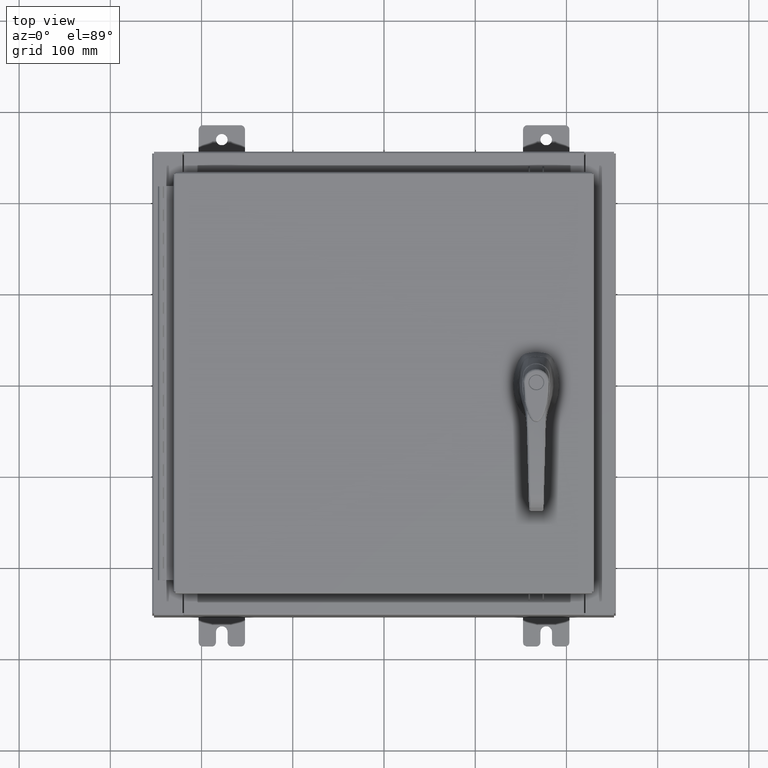
[diagram: clean part render]
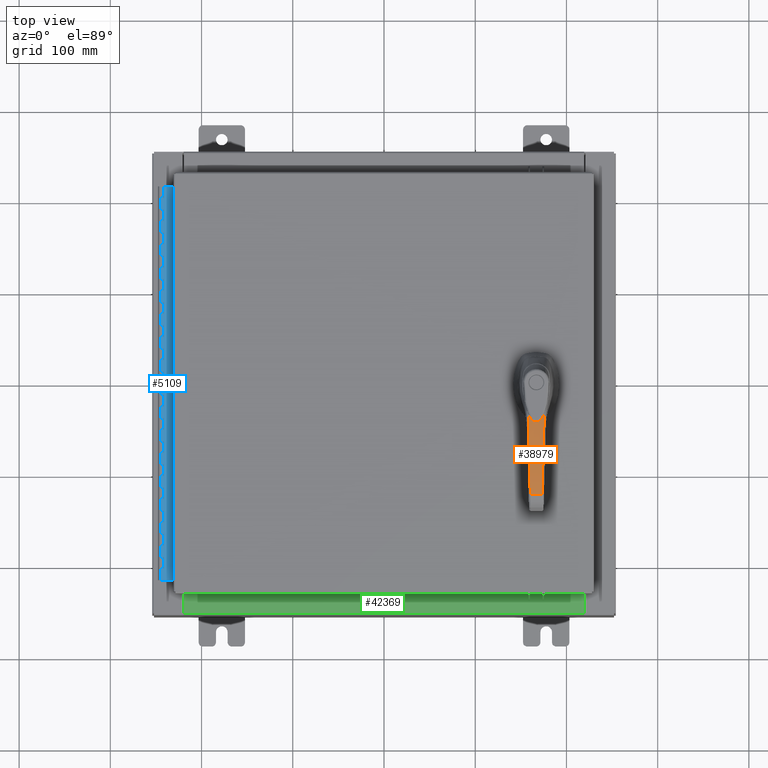
[diagram: same view with three faces highlighted in distinct colors, each labeled with its STEP entity id]
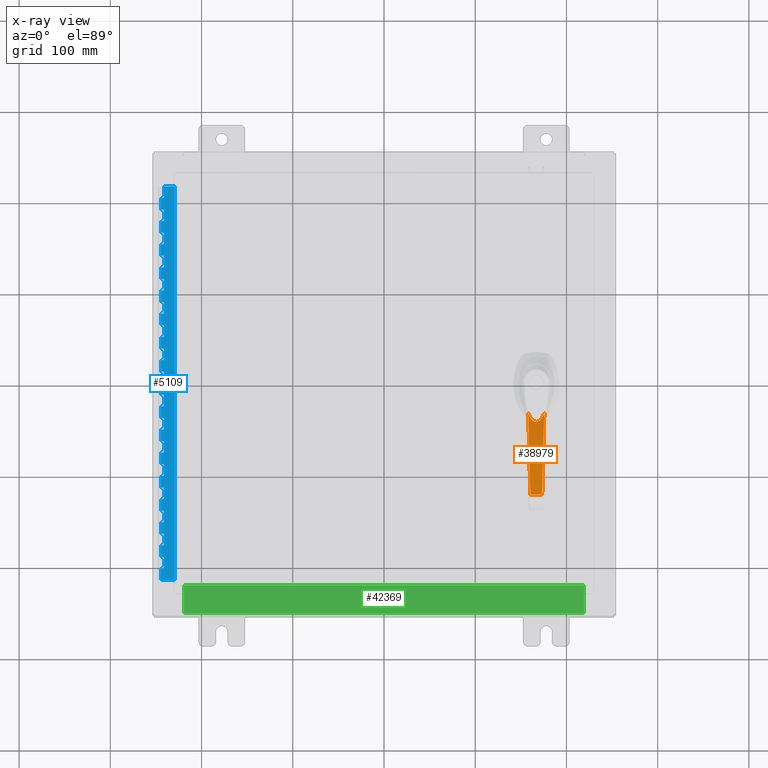
[diagram: x-ray of the same camera — body ghosted, the three highlighted faces saturated]
A machine part, top view with three faces highlighted in distinct colors.
The next image is the same camera in x-ray (body ghosted, the three faces saturated) — at least one of them is partly hidden behind the body in this view.
Their STEP definitions:

[orange] entity #38979 — the highlighted cylindrical surface (partial cylindrical patch) has radius 300 mm, axis along (-1, 0, 0).
#21 = CARTESIAN_POINT ( 'NONE',  ( 4.713819558154699300, 0.2573626924901438200, 1.837270814955582300 ) ) ;
#390 = CARTESIAN_POINT ( 'NONE',  ( 4.260082169443002400, 0.2691715254287439500, 1.889412627025926400 ) ) ;
#738 = CARTESIAN_POINT ( 'NONE',  ( 3.180696913865968900, 0.2972412797304896400, 1.940904307400748200 ) ) ;
#757 = CARTESIAN_POINT ( 'NONE',  ( 3.722113557932754400, -0.2831583025764992100, 1.939610180467811000 ) ) ;
#2685 = CARTESIAN_POINT ( 'NONE',  ( 3.149606299212600400, 0.3588687022006208900, -9.870078740157547200 ) ) ;
#4212 = ORIENTED_EDGE ( 'NONE', *, *, #57502, .T. ) ;
#4621 = CARTESIAN_POINT ( 'NONE',  ( 1.377774985390518300, 0.3154086851259910700, 1.807295794097451700 ) ) ;
#4994 = CARTESIAN_POINT ( 'NONE',  ( 1.524578228761892300, 0.2319618882066560300, 1.828620816553903700 ) ) ;
#5367 = CARTESIAN_POINT ( 'NONE',  ( 1.631777938687809700, 0.1317797834924160100, 1.843011216588320100 ) ) ;
#5716 = CARTESIAN_POINT ( 'NONE',  ( 1.675872596846162100, 0.04566907200706420100, 1.848644063507545000 ) ) ;
#5885 = CARTESIAN_POINT ( 'NONE',  ( 1.372892883534213300, -0.3469424119739081300, 1.806884306011927100 ) ) ;
#6088 = CARTESIAN_POINT ( 'NONE',  ( 1.649525308882269000, -0.1053112417757887400, 1.845297665867076600 ) ) ;
#6468 = CARTESIAN_POINT ( 'NONE',  ( 1.540911026017865600, -0.2200747778046599500, 1.830878084273679600 ) ) ;
#6829 = CARTESIAN_POINT ( 'NONE',  ( 1.415001884902473000, -0.2971666495078808500, 1.812875826676431800 ) ) ;
#7604 = CARTESIAN_POINT ( 'NONE',  ( 1.461149604711800400, 0.3419711910575385400, 1.819977865742909500 ) ) ;
#8892 = CARTESIAN_POINT ( 'NONE',  ( 3.842159367048337600, 0.2800416382408084100, 1.921681097564928300 ) ) ;
#9277 = CARTESIAN_POINT ( 'NONE',  ( 2.823583190880743800, 0.3065276448944533900, 1.937522127742038500 ) ) ;
#9291 = CARTESIAN_POINT ( 'NONE',  ( 2.633561730653567700, -0.3114730037977984600, 1.942212103133158700 ) ) ;
#11165 = DIRECTION ( 'NONE',  ( 6.585885615622188800E-029, -1.000000000000000000, -2.366582715663019700E-030 ) ) ;
#12797 = CARTESIAN_POINT ( 'NONE',  ( 1.285167405151900000, -0.3546133440856468200, 1.792860362220519000 ) ) ;
#13117 = CARTESIAN_POINT ( 'NONE',  ( 1.403971242061108100, 0.3027154104630249100, 1.811233171745022500 ) ) ;
#13470 = CARTESIAN_POINT ( 'NONE',  ( 1.530290378760419200, 0.2278771327639601000, 1.829412508182437100 ) ) ;
#13818 = CARTESIAN_POINT ( 'NONE',  ( 1.632741932373660500, 0.1304805322846237800, 1.843136084596481000 ) ) ;
#14194 = CARTESIAN_POINT ( 'NONE',  ( 1.680095335233348500, -0.01197136183687825700, 1.849171087712753800 ) ) ;
#14556 = CARTESIAN_POINT ( 'NONE',  ( 1.638941990221837200, -0.1218315539769641900, 1.843937560668230900 ) ) ;
#14906 = CARTESIAN_POINT ( 'NONE',  ( 1.534019329573090600, -0.2251692678404896800, 1.829928034573039100 ) ) ;
#15268 = CARTESIAN_POINT ( 'NONE',  ( 1.413242188827235300, -0.2980603697912345100, 1.812614391285424700 ) ) ;
#15395 = B_SPLINE_CURVE_WITH_KNOTS ( 'NONE', 3,
 ( #25841, #76369, #757, #59789, #9291, #68213, #17729 ),
 .UNSPECIFIED., .F., .F.,
 ( 4, 3, 4 ),
 ( 0.0000000000000000000, 0.4999999999999983900, 1.000000000000000000 ),
 .UNSPECIFIED. ) ;
#17373 = CARTESIAN_POINT ( 'NONE',  ( 3.523797029380387500, 0.2883190942661002500, 1.935318005950541700 ) ) ;
#17717 = CARTESIAN_POINT ( 'NONE',  ( 2.357254433555587600, 0.3186526733585864400, 1.915122674931482700 ) ) ;
#17729 = CARTESIAN_POINT ( 'NONE',  ( 1.549936709521860100, -0.3396595521461254200, 1.832114909085251800 ) ) ;
#18334 = CARTESIAN_POINT ( 'NONE',  ( 4.805199877897494300, 0.2549857665720962600, 1.824333981427794600 ) ) ;
#19675 = EDGE_LOOP ( 'NONE', ( #4212, #105608, #32583, #55481, #97966, #63163 ) ) ;
#21223 = CARTESIAN_POINT ( 'NONE',  ( 1.308225132359797300, 0.3456984148396843900, 1.796546292019684200 ) ) ;
#21574 = CARTESIAN_POINT ( 'NONE',  ( 1.410378708594574500, 0.2995076315425575000, 1.812188464822345400 ) ) ;
#21946 = CARTESIAN_POINT ( 'NONE',  ( 1.531637965723825500, 0.2269023104898842400, 1.829598928321435100 ) ) ;
#22318 = CARTESIAN_POINT ( 'NONE',  ( 1.640565656399474200, 0.1198494022903190100, 1.844149003382682200 ) ) ;
#22683 = CARTESIAN_POINT ( 'NONE',  ( 1.675677567251014500, -0.04071549074534777000, 1.848616337587206200 ) ) ;
#23027 = CARTESIAN_POINT ( 'NONE',  ( 1.634216720233389000, -0.1284710039474836200, 1.843326990127303900 ) ) ;
#23209 = FACE_OUTER_BOUND ( 'NONE', #19675, .T. ) ;
#23401 = CARTESIAN_POINT ( 'NONE',  ( 1.532357968586506500, -0.2263797702776819700, 1.829698477823375100 ) ) ;
#23765 = CARTESIAN_POINT ( 'NONE',  ( 1.373760058113460800, -0.3180463064242681800, 1.806743859184440700 ) ) ;
#24940 = B_SPLINE_CURVE_WITH_KNOTS ( 'NONE', 3,
 ( #33928, #21, #101416, #50879, #390, #59400, #8892, #67839, #17373, #76353, #25821, #84838, #34309, #93322, #42786, #101790, #51273, #738, #59777, #9277, #68201, #17717, #76730, #26203, #85185, #34663, #93705 ),
 .UNSPECIFIED., .F., .F.,
 ( 4, 2, 2, 2, 2, 2, 1, 1, 1, 2, 2, 2, 2, 2, 4 ),
 ( 0.0000000000000000000, 0.1249999999999931400, 0.2499999999999862900, 0.3749999999999794600, 0.4374999999999760200, 0.4687499999999743000, 0.4843749999999734100, 0.4921874999999731900, 0.4960937499999728600, 0.4980468749999726900, 0.4999999999999725200, 0.6249999999999793500, 0.7499999999999862300, 0.8749999999999932300, 1.000000000000000000 ),
 .UNSPECIFIED. ) ;
#25821 = CARTESIAN_POINT ( 'NONE',  ( 3.354255696629976600, 0.2927274858646544100, 1.939252233246050900 ) ) ;
#25841 = CARTESIAN_POINT ( 'NONE',  ( 4.805199877897500500, -0.2549857665720929900, 1.824333981427804600 ) ) ;
#26203 = CARTESIAN_POINT ( 'NONE',  ( 1.962192344927148300, 0.3289308373534544600, 1.881644855761437400 ) ) ;
#27764 = DIRECTION ( 'NONE',  ( 0.0000000000000000000, 0.0000000000000000000, -1.000000000000000000 ) ) ;
#30063 = CARTESIAN_POINT ( 'NONE',  ( 1.411895976838715600, 0.2987418508005019700, 1.812414227103917900 ) ) ;
#30424 = CARTESIAN_POINT ( 'NONE',  ( 1.553573932691901400, 0.2109698468301423600, 1.832631472685400500 ) ) ;
#30781 = CARTESIAN_POINT ( 'NONE',  ( 1.655649401556292800, 0.09432184503515143900, 1.846080186316515500 ) ) ;
#31139 = CARTESIAN_POINT ( 'NONE',  ( 1.670501837927453900, -0.05933737364029672400, 1.847964213049017300 ) ) ;
#31512 = CARTESIAN_POINT ( 'NONE',  ( 1.633059957810161000, -0.1300495619730004400, 1.843177265309154300 ) ) ;
#31870 = CARTESIAN_POINT ( 'NONE',  ( 1.514556654445373500, -0.2392854525976243200, 1.827236800739587600 ) ) ;
#32210 = CARTESIAN_POINT ( 'NONE',  ( 1.285167405151900000, -0.3546133440856468200, 1.792860362220519000 ) ) ;
#32583 = ORIENTED_EDGE ( 'NONE', *, *, #95887, .F. ) ;
#33928 = CARTESIAN_POINT ( 'NONE',  ( 4.805199877897494300, 0.2549857665720962600, 1.824333981427794600 ) ) ;
#34309 = CARTESIAN_POINT ( 'NONE',  ( 3.255921162986638700, 0.2952847344197897500, 1.940502775483829300 ) ) ;
#34663 = CARTESIAN_POINT ( 'NONE',  ( 1.638260262526196800, 0.3373621368790576400, 1.844188585699173800 ) ) ;
#38532 = CARTESIAN_POINT ( 'NONE',  ( 1.435195623636512200, 0.2869488096781751500, 1.815878705668518400 ) ) ;
#38866 = CARTESIAN_POINT ( 'NONE',  ( 1.597928116298609900, 0.1710148495156838500, 1.838578136496568800 ) ) ;
#38979 = ADVANCED_FACE ( 'NONE', ( #23209 ), #107626, .T. ) ;
#39248 = CARTESIAN_POINT ( 'NONE',  ( 1.663589786831865900, 0.07759667621417844200, 1.847089689351801400 ) ) ;
#39494 = CARTESIAN_POINT ( 'NONE',  ( 4.805199877897500500, -0.2549857665720929900, 1.824333981427804600 ) ) ;
#39611 = CARTESIAN_POINT ( 'NONE',  ( 1.667982851357430900, -0.06648546394591696400, 1.847645912295614600 ) ) ;
#39969 = CARTESIAN_POINT ( 'NONE',  ( 1.620322453436910100, -0.1472583990823396700, 1.841527598334632200 ) ) ;
#40325 = CARTESIAN_POINT ( 'NONE',  ( 1.466267725725002700, -0.2693476378157209600, 1.820376805866258200 ) ) ;
#41036 = B_SPLINE_CURVE_WITH_KNOTS ( 'NONE', 3,
 ( #66177, #49602, #7604, #66536 ),
 .UNSPECIFIED., .F., .F.,
 ( 4, 4 ),
 ( 0.0000000000000000000, 1.000000000000000000 ),
 .UNSPECIFIED. ) ;
#42553 = DIRECTION ( 'NONE',  ( -6.585885615622188800E-029, 1.000000000000000000, 2.366582715663019700E-030 ) ) ;
#42786 = CARTESIAN_POINT ( 'NONE',  ( 3.197470930382346300, 0.2968049740498370800, 1.940850218433549000 ) ) ;
#47031 = CARTESIAN_POINT ( 'NONE',  ( 1.486437698170220300, 0.2572311655015962500, 1.823263412956690500 ) ) ;
#47405 = CARTESIAN_POINT ( 'NONE',  ( 1.621908635050475900, 0.1444618146254956800, 1.841728913890032800 ) ) ;
#47767 = CARTESIAN_POINT ( 'NONE',  ( 1.666216210166165700, 0.07113358953773354900, 1.847422397405546100 ) ) ;
#47921 = CARTESIAN_POINT ( 'NONE',  ( 1.549936709521860100, -0.3396595521461254200, 1.832114909085251800 ) ) ;
#48106 = CARTESIAN_POINT ( 'NONE',  ( 1.667157571439208800, -0.06869618003176535000, 1.847541531571280600 ) ) ;
#48470 = CARTESIAN_POINT ( 'NONE',  ( 1.580548218858676600, -0.1876082219816786500, 1.836261751761631100 ) ) ;
#48850 = CARTESIAN_POINT ( 'NONE',  ( 1.431996714045653300, -0.2883624919504106400, 1.815388736092760300 ) ) ;
#49602 = CARTESIAN_POINT ( 'NONE',  ( 1.372892883534753100, 0.3469424119738758700, 1.806884306012007200 ) ) ;
#50879 = CARTESIAN_POINT ( 'NONE',  ( 4.384581782162149100, 0.2659316760357919300, 1.876757077655758900 ) ) ;
#51273 = CARTESIAN_POINT ( 'NONE',  ( 3.183455179332787200, 0.2971695341875251200, 1.940896711540005300 ) ) ;
#52146 = B_SPLINE_CURVE_WITH_KNOTS ( 'NONE', 3,
 ( #47921, #98453, #5885, #64857 ),
 .UNSPECIFIED., .F., .F.,
 ( 4, 4 ),
 ( 0.0000000000000000000, 1.000000000000000000 ),
 .UNSPECIFIED. ) ;
#54884 = EDGE_CURVE ( 'NONE', #61790, #95642, #52146, .T. ) ;
#55152 = CARTESIAN_POINT ( 'NONE',  ( 1.362201980543968200, 0.3225149545132367000, 1.804919336107098300 ) ) ;
#55481 = ORIENTED_EDGE ( 'NONE', *, *, #90178, .T. ) ;
#55529 = CARTESIAN_POINT ( 'NONE',  ( 1.516830157375114600, 0.2373842696045006000, 1.827543091604360200 ) ) ;
#55886 = CARTESIAN_POINT ( 'NONE',  ( 1.630415031557463900, 0.1335971382965792900, 1.842834560165939300 ) ) ;
#56251 = CARTESIAN_POINT ( 'NONE',  ( 1.666943250047630700, 0.06925946003726730900, 1.847514415332594600 ) ) ;
#56611 = CARTESIAN_POINT ( 'NONE',  ( 1.658104608024400600, -0.08997679606067611500, 1.846394063252982700 ) ) ;
#56687 = B_SPLINE_CURVE_WITH_KNOTS ( 'NONE', 3,
 ( #63232, #21223, #105636, #55152, #4621, #63599, #13117, #72070, #21574, #80601, #30063, #89047, #38532, #97542, #47031, #105982, #55529, #4994, #63942, #13470, #72443, #21946, #80945, #30424, #89435, #38866, #97922, #47405, #106346, #55886, #5367, #64316, #13818, #72812, #22318, #81306, #30781, #89812, #39248, #98279, #47767, #106731, #56251, #5716, #64694, #14194, #73152, #22683, #81686, #31139, #90164, #39611, #98661, #48106, #107096, #56611, #6088, #65035, #14556, #73518, #23027, #82050, #31512, #90518, #39969, #99032, #48470, #107448, #56987, #6468, #65386, #14906, #73902, #23401, #82393, #31870, #90887, #40325, #99385, #48850, #107818, #57327, #6829, #65746, #15268, #74248, #23765, #82758, #32210 ),
 .UNSPECIFIED., .F., .F.,
 ( 4, 2, 1, 1, 1, 1, 1, 2, 2, 2, 1, 1, 1, 1, 1, 2, 2, 2, 1, 1, 1, 1, 1, 2, 2, 2, 1, 1, 1, 2, 2, 2, 2, 1, 1, 1, 2, 2, 2, 1, 1, 1, 1, 2, 2, 2, 1, 1, 1, 1, 1, 2, 2, 2, 1, 1, 1, 1, 1, 2, 2, 4 ),
 ( 0.0000000000000000000, 0.06250000000000907600, 0.09375000000001361400, 0.1093750000000158800, 0.1171875000000165800, 0.1210937500000165100, 0.1230468750000164700, 0.1240234375000164600, 0.1250000000000164300, 0.1875000000000376600, 0.2187500000000482900, 0.2343750000000539000, 0.2421875000000566500, 0.2460937500000580600, 0.2480468750000584000, 0.2490234375000585400, 0.2500000000000586800, 0.3125000000000721100, 0.3437500000000790500, 0.3593750000000825500, 0.3671875000000843800, 0.3710937500000852100, 0.3730468750000853800, 0.3740234375000852100, 0.3750000000000851000, 0.4062500000000757200, 0.4218750000000711700, 0.4296875000000688300, 0.4335937500000677800, 0.4355468750000672200, 0.4375000000000667200, 0.5000000000000487400, 0.5312500000000398600, 0.5468750000000354200, 0.5546875000000332000, 0.5585937500000319700, 0.5605468750000313100, 0.5625000000000307500, 0.5937500000000205400, 0.6093750000000155400, 0.6171875000000129900, 0.6210937500000117700, 0.6230468750000112100, 0.6240234375000108800, 0.6250000000000105500, 0.6874999999999790200, 0.7187499999999633600, 0.7343749999999555900, 0.7421874999999517100, 0.7460937499999498200, 0.7480468749999488200, 0.7490234374999487100, 0.7499999999999484900, 0.8124999999999630300, 0.8437499999999702500, 0.8593749999999734700, 0.8671874999999753500, 0.8710937499999762400, 0.8730468749999764600, 0.8740234374999768000, 0.8749999999999771300, 1.000000000000000000 ),
 .UNSPECIFIED. ) ;
#56987 = CARTESIAN_POINT ( 'NONE',  ( 1.549882932702323400, -0.2132559411452255900, 1.832109519501155000 ) ) ;
#57327 = CARTESIAN_POINT ( 'NONE',  ( 1.417457569571591000, -0.2959139997767323300, 1.813240278477147500 ) ) ;
#57502 = EDGE_CURVE ( 'NONE', #104575, #63149, #79441, .T. ) ;
#59400 = CARTESIAN_POINT ( 'NONE',  ( 3.988872018762675200, 0.2762265065312521900, 1.911874702511231500 ) ) ;
#59777 = CARTESIAN_POINT ( 'NONE',  ( 2.994844391632357700, 0.3020755544132391300, 1.941348543382804400 ) ) ;
#59789 = CARTESIAN_POINT ( 'NONE',  ( 3.177837644293160400, -0.2973156531871488100, 1.940911141800487600 ) ) ;
#61118 = CARTESIAN_POINT ( 'NONE',  ( 1.549936709521860100, -0.3396595521461254200, 1.832114909085251800 ) ) ;
#61790 = VERTEX_POINT ( 'NONE', #61118 ) ;
#63149 = VERTEX_POINT ( 'NONE', #18334 ) ;
#63163 = ORIENTED_EDGE ( 'NONE', *, *, #76373, .F. ) ;
#63232 = CARTESIAN_POINT ( 'NONE',  ( 1.285167403707584900, 0.3546133445978453800, 1.792860362760524400 ) ) ;
#63599 = CARTESIAN_POINT ( 'NONE',  ( 1.395339831983418300, 0.3069710070873745100, 1.809941467447436300 ) ) ;
#63942 = CARTESIAN_POINT ( 'NONE',  ( 1.528395749153921500, 0.2292404292824124200, 1.829150185326998200 ) ) ;
#64316 = CARTESIAN_POINT ( 'NONE',  ( 1.632357006304416400, 0.1310003132830387400, 1.843086230139458800 ) ) ;
#64694 = CARTESIAN_POINT ( 'NONE',  ( 1.680175953285388400, 0.02266160196180204100, 1.849181196457991400 ) ) ;
#64857 = CARTESIAN_POINT ( 'NONE',  ( 1.285167405151900000, -0.3546133440856468200, 1.792860362220519000 ) ) ;
#65035 = CARTESIAN_POINT ( 'NONE',  ( 1.644906487703437400, -0.1129549742528693400, 1.844705813593947600 ) ) ;
#65386 = CARTESIAN_POINT ( 'NONE',  ( 1.536332061329256600, -0.2234729747293793000, 1.830247252460759600 ) ) ;
#65746 = CARTESIAN_POINT ( 'NONE',  ( 1.413946465048443700, -0.2977029543502183200, 1.812719044079258200 ) ) ;
#66177 = CARTESIAN_POINT ( 'NONE',  ( 1.285167403707584900, 0.3546133445978453800, 1.792860362760524400 ) ) ;
#66536 = CARTESIAN_POINT ( 'NONE',  ( 1.549936709521849500, 0.3396595521461265300, 1.832114909085251800 ) ) ;
#67839 = CARTESIAN_POINT ( 'NONE',  ( 3.605464906671501400, 0.2861957975425956600, 1.932408694108115600 ) ) ;
#68201 = CARTESIAN_POINT ( 'NONE',  ( 2.504789629931721200, 0.3148162043671270400, 1.924408988684554300 ) ) ;
#68213 = CARTESIAN_POINT ( 'NONE',  ( 2.089199057867320100, -0.3256326111308631100, 1.905831137458335900 ) ) ;
#68313 = CARTESIAN_POINT ( 'NONE',  ( 1.285167403707584900, 0.3546133445978453800, 1.792860362760524400 ) ) ;
#72070 = CARTESIAN_POINT ( 'NONE',  ( 1.408249181654863000, 0.3005784227495900100, 1.811871312986583300 ) ) ;
#72443 = CARTESIAN_POINT ( 'NONE',  ( 1.531099334706941900, 0.2272923127439811800, 1.829524427485572600 ) ) ;
#72812 = CARTESIAN_POINT ( 'NONE',  ( 1.632892665029188000, 0.1302765233638275300, 1.843155604267195700 ) ) ;
#73152 = CARTESIAN_POINT ( 'NONE',  ( 1.678980772138683400, -0.02348651453883057000, 1.849031485695056000 ) ) ;
#73518 = CARTESIAN_POINT ( 'NONE',  ( 1.635815798552236100, -0.1262595667975536000, 1.843533802100519200 ) ) ;
#73564 = CARTESIAN_POINT ( 'NONE',  ( 1.549936709521849500, 0.3396595521461265300, 1.832114909085251800 ) ) ;
#73902 = CARTESIAN_POINT ( 'NONE',  ( 1.533023177175498500, -0.2258956494556978700, 1.829790409659602300 ) ) ;
#74248 = CARTESIAN_POINT ( 'NONE',  ( 1.412839862362122600, -0.2982642543102432300, 1.812554586203155100 ) ) ;
#76353 = CARTESIAN_POINT ( 'NONE',  ( 3.397158093014661000, 0.2916119047857203600, 1.938425827258937000 ) ) ;
#76369 = CARTESIAN_POINT ( 'NONE',  ( 4.266296091497491000, -0.2690033809075353400, 1.900627307953385300 ) ) ;
#76373 = EDGE_CURVE ( 'NONE', #104575, #61790, #15395, .T. ) ;
#76730 = CARTESIAN_POINT ( 'NONE',  ( 2.085957004588856900, 0.3257099898517500400, 1.893740539790314600 ) ) ;
#76817 = VECTOR ( 'NONE', #42553, 39.37007874015748100 ) ;
#79441 = LINE ( 'NONE', #80604, #76817 ) ;
#80601 = CARTESIAN_POINT ( 'NONE',  ( 1.411289339368764900, 0.2990482287359047500, 1.812323976823135600 ) ) ;
#80604 = CARTESIAN_POINT ( 'NONE',  ( 4.805199877897501400, 6.099088612688688300, 1.824333981427800100 ) ) ;
#80945 = CARTESIAN_POINT ( 'NONE',  ( 1.531841238162588800, 0.2267549729690659400, 1.829627039123037400 ) ) ;
#81306 = CARTESIAN_POINT ( 'NONE',  ( 1.647126988818359700, 0.1096758325861603800, 1.844991371880559700 ) ) ;
#81686 = CARTESIAN_POINT ( 'NONE',  ( 1.673618130089356000, -0.04931904063700357600, 1.848357284676178000 ) ) ;
#82050 = CARTESIAN_POINT ( 'NONE',  ( 1.633523690778683200, -0.1294182121702326700, 1.843237296713782400 ) ) ;
#82393 = CARTESIAN_POINT ( 'NONE',  ( 1.531958825236948300, -0.2266696006880557800, 1.829643296008429900 ) ) ;
#82758 = CARTESIAN_POINT ( 'NONE',  ( 1.331296485917092800, -0.3367782127205291000, 1.800234481340114100 ) ) ;
#84578 = VERTEX_POINT ( 'NONE', #68313 ) ;
#84838 = CARTESIAN_POINT ( 'NONE',  ( 3.288871157594099900, 0.2944278238416462300, 1.940143925120745100 ) ) ;
#85185 = CARTESIAN_POINT ( 'NONE',  ( 1.738344976384665000, 0.3347569108671082900, 1.856868895625636300 ) ) ;
#89047 = CARTESIAN_POINT ( 'NONE',  ( 1.412147350919571200, 0.2986147853169368600, 1.812451616407736900 ) ) ;
#89435 = CARTESIAN_POINT ( 'NONE',  ( 1.572688659303535400, 0.1951527432348481300, 1.835214844775217500 ) ) ;
#89812 = CARTESIAN_POINT ( 'NONE',  ( 1.659580715408747000, 0.08662144301095423000, 1.846580881107011900 ) ) ;
#90164 = CARTESIAN_POINT ( 'NONE',  ( 1.668765304187851000, -0.06434175467436736900, 1.847744838486977200 ) ) ;
#90178 = EDGE_CURVE ( 'NONE', #84578, #95642, #56687, .T. ) ;
#90518 = CARTESIAN_POINT ( 'NONE',  ( 1.632785392386038900, -0.1304217021505274500, 1.843141712585310900 ) ) ;
#90887 = CARTESIAN_POINT ( 'NONE',  ( 1.496057899066936400, -0.2514591596072200400, 1.824640546464781500 ) ) ;
#93322 = CARTESIAN_POINT ( 'NONE',  ( 3.217029300581202300, 0.2962962612095071900, 1.940761667420601600 ) ) ;
#93705 = CARTESIAN_POINT ( 'NONE',  ( 1.549936709521849500, 0.3396595521461265300, 1.832114909085251800 ) ) ;
#93989 = VERTEX_POINT ( 'NONE', #73564 ) ;
#95642 = VERTEX_POINT ( 'NONE', #12797 ) ;
#95887 = EDGE_CURVE ( 'NONE', #84578, #93989, #41036, .T. ) ;
#97542 = CARTESIAN_POINT ( 'NONE',  ( 1.456517634884626000, 0.2752119614751029600, 1.818981777874303800 ) ) ;
#97922 = CARTESIAN_POINT ( 'NONE',  ( 1.609689720394116300, 0.1588428430745459900, 1.840131652460320400 ) ) ;
#97966 = ORIENTED_EDGE ( 'NONE', *, *, #54884, .F. ) ;
#98279 = CARTESIAN_POINT ( 'NONE',  ( 1.665449941460996700, 0.07307405170698747000, 1.847325382728717500 ) ) ;
#98453 = CARTESIAN_POINT ( 'NONE',  ( 1.461149604711533300, -0.3419711910575439800, 1.819977865742872900 ) ) ;
#98564 = EDGE_CURVE ( 'NONE', #63149, #93989, #24940, .T. ) ;
#98661 = CARTESIAN_POINT ( 'NONE',  ( 1.667452722112508400, -0.06791437558087495800, 1.847578869016403700 ) ) ;
#99032 = CARTESIAN_POINT ( 'NONE',  ( 1.605775901944841000, -0.1635624813666129200, 1.839624697243189800 ) ) ;
#99385 = CARTESIAN_POINT ( 'NONE',  ( 1.450862142650974500, -0.2781988563434980000, 1.818152528769783300 ) ) ;
#101416 = CARTESIAN_POINT ( 'NONE',  ( 4.611449591162005900, 0.2600272595664918100, 1.850686182147251600 ) ) ;
#101790 = CARTESIAN_POINT ( 'NONE',  ( 3.189064689842292300, 0.2970236258625792400, 1.940879303231502800 ) ) ;
#104575 = VERTEX_POINT ( 'NONE', #39494 ) ;
#105608 = ORIENTED_EDGE ( 'NONE', *, *, #98564, .T. ) ;
#105636 = CARTESIAN_POINT ( 'NONE',  ( 1.330367034998277000, 0.3365594585218263900, 1.800015887332638600 ) ) ;
#105982 = CARTESIAN_POINT ( 'NONE',  ( 1.500882007459648100, 0.2481468865976179900, 1.825310919166971000 ) ) ;
#106346 = CARTESIAN_POINT ( 'NONE',  ( 1.627642221730797500, 0.1372262118340399600, 1.842474734026398900 ) ) ;
#106731 = CARTESIAN_POINT ( 'NONE',  ( 1.666720180148460800, 0.06983946041971650400, 1.847486187034470100 ) ) ;
#107096 = CARTESIAN_POINT ( 'NONE',  ( 1.662946339963018900, -0.07969119123599911800, 1.847008659323614100 ) ) ;
#107448 = CARTESIAN_POINT ( 'NONE',  ( 1.567082441918961100, -0.1995284965863755600, 1.834452944274897800 ) ) ;
#107626 = CYLINDRICAL_SURFACE ( 'NONE', #108874, 11.81102362204732100 ) ;
#107818 = CARTESIAN_POINT ( 'NONE',  ( 1.422341089794085800, -0.2934036132516594200, 1.813963700160041700 ) ) ;
#108874 = AXIS2_PLACEMENT_3D ( 'NONE', #2685, #11165, #27764 ) ;

[blue] entity #5109 — the highlighted planar face has unit normal (-0, -0, 1).
#206 = VERTEX_POINT ( 'NONE', #88270 ) ;
#347 = EDGE_CURVE ( 'NONE', #39568, #101821, #64907, .T. ) ;
#617 = EDGE_CURVE ( 'NONE', #54124, #6620, #101884, .T. ) ;
#657 = LINE ( 'NONE', #61716, #20436 ) ;
#881 = VECTOR ( 'NONE', #99843, 39.37007874015748100 ) ;
#1586 = DIRECTION ( 'NONE',  ( 0.0000000000000000000, 0.0000000000000000000, 1.000000000000000000 ) ) ;
#2064 = VECTOR ( 'NONE', #4517, 39.37007874015748100 ) ;
#2115 = ORIENTED_EDGE ( 'NONE', *, *, #18484, .F. ) ;
#2181 = CARTESIAN_POINT ( 'NONE',  ( -0.6869999999999978300, 0.6754999999999996600, -14.00000000000000000 ) ) ;
#2237 = LINE ( 'NONE', #11459, #89309 ) ;
#2748 = CARTESIAN_POINT ( 'NONE',  ( -0.6869999999999973900, 0.8004999999999995500, -2.999999999999999600 ) ) ;
#2778 = ORIENTED_EDGE ( 'NONE', *, *, #8258, .F. ) ;
#3165 = CARTESIAN_POINT ( 'NONE',  ( -0.6869999999999978300, 0.6754999999999996600, -17.00000000000000000 ) ) ;
#3292 = CARTESIAN_POINT ( 'NONE',  ( -0.6869999999999982800, 0.5504999999999997700, -0.5000000000000000000 ) ) ;
#3349 = LINE ( 'NONE', #43621, #67978 ) ;
#3596 = ORIENTED_EDGE ( 'NONE', *, *, #93419, .T. ) ;
#3621 = VECTOR ( 'NONE', #83937, 39.37007874015748100 ) ;
#3710 = DIRECTION ( 'NONE',  ( 3.389037039080723100E-015, 1.000000000000000000, -0.0000000000000000000 ) ) ;
#3889 = CARTESIAN_POINT ( 'NONE',  ( -0.6869999999999982800, 0.5504999999999997700, -16.50000000000000000 ) ) ;
#3978 = EDGE_CURVE ( 'NONE', #77742, #16531, #50902, .T. ) ;
#4023 = VERTEX_POINT ( 'NONE', #46784 ) ;
#4146 = VERTEX_POINT ( 'NONE', #35305 ) ;
#4517 = DIRECTION ( 'NONE',  ( 0.0000000000000000000, 0.0000000000000000000, 1.000000000000000000 ) ) ;
#4544 = VECTOR ( 'NONE', #11676, 39.37007874015748100 ) ;
#4556 = CARTESIAN_POINT ( 'NONE',  ( -0.6870000000000022800, -0.6245000000000003900, 0.0000000000000000000 ) ) ;
#4605 = DIRECTION ( 'NONE',  ( -3.389037039080723100E-015, -1.000000000000000000, 0.0000000000000000000 ) ) ;
#4734 = DIRECTION ( 'NONE',  ( -3.389037039080723100E-015, -1.000000000000000000, 0.0000000000000000000 ) ) ;
#4747 = VERTEX_POINT ( 'NONE', #6755 ) ;
#4962 = EDGE_CURVE ( 'NONE', #49789, #101821, #70573, .T. ) ;
#5053 = LINE ( 'NONE', #65313, #44627 ) ;
#5109 = ADVANCED_FACE ( 'NONE', ( #28371 ), #42828, .T. ) ;
#5114 = VECTOR ( 'NONE', #5466, 39.37007874015748100 ) ;
#5466 = DIRECTION ( 'NONE',  ( 0.0000000000000000000, 0.0000000000000000000, 1.000000000000000000 ) ) ;
#5693 = EDGE_CURVE ( 'NONE', #93226, #4023, #86359, .T. ) ;
#6145 = ORIENTED_EDGE ( 'NONE', *, *, #17124, .T. ) ;
#6407 = CARTESIAN_POINT ( 'NONE',  ( -0.6869999999999982800, 0.5504999999999997700, -8.500000000000000000 ) ) ;
#6620 = VERTEX_POINT ( 'NONE', #104771 ) ;
#6628 = VECTOR ( 'NONE', #82409, 39.37007874015748100 ) ;
#6755 = CARTESIAN_POINT ( 'NONE',  ( -0.6869999999999982800, 0.5504999999999997700, -13.50000000000000000 ) ) ;
#6883 = CARTESIAN_POINT ( 'NONE',  ( -0.6869999999999982800, 0.5504999999999997700, -6.499999999999999100 ) ) ;
#7255 = ORIENTED_EDGE ( 'NONE', *, *, #31021, .F. ) ;
#7280 = ORIENTED_EDGE ( 'NONE', *, *, #347, .F. ) ;
#7434 = LINE ( 'NONE', #54801, #72044 ) ;
#7472 = VECTOR ( 'NONE', #75732, 39.37007874015748100 ) ;
#7580 = CARTESIAN_POINT ( 'NONE',  ( -0.6869999999999982800, 0.5504999999999997700, -11.99999999999999800 ) ) ;
#7634 = VERTEX_POINT ( 'NONE', #100338 ) ;
#7668 = CARTESIAN_POINT ( 'NONE',  ( -0.6869999999999978300, 0.6754999999999996600, -5.000000000000000000 ) ) ;
#7782 = VERTEX_POINT ( 'NONE', #102496 ) ;
#7796 = LINE ( 'NONE', #29462, #72407 ) ;
#7835 = LINE ( 'NONE', #100829, #72450 ) ;
#7978 = EDGE_CURVE ( 'NONE', #89288, #81954, #53143, .T. ) ;
#7983 = CARTESIAN_POINT ( 'NONE',  ( -0.6869999999999973900, 0.8004999999999995500, -5.000000000000000000 ) ) ;
#8069 = CARTESIAN_POINT ( 'NONE',  ( -0.6869999999999978300, 0.6754999999999996600, -8.500000000000000000 ) ) ;
#8135 = EDGE_CURVE ( 'NONE', #11435, #86276, #107183, .T. ) ;
#8258 = EDGE_CURVE ( 'NONE', #89288, #43786, #79491, .T. ) ;
#8419 = DIRECTION ( 'NONE',  ( 3.389037039080723100E-015, 1.000000000000000000, -0.0000000000000000000 ) ) ;
#8856 = CARTESIAN_POINT ( 'NONE',  ( -0.6869999999999978300, 0.6754999999999996600, -17.00000000000000000 ) ) ;
#9323 = CARTESIAN_POINT ( 'NONE',  ( -0.6870000000000022800, -0.6245000000000003900, -17.00000000000000000 ) ) ;
#9490 = CARTESIAN_POINT ( 'NONE',  ( -0.6869999999999973900, 0.8004999999999995500, -14.49999999999999800 ) ) ;
#9709 = VERTEX_POINT ( 'NONE', #89790 ) ;
#9981 = VECTOR ( 'NONE', #32371, 39.37007874015748100 ) ;
#10379 = LINE ( 'NONE', #4556, #18307 ) ;
#10756 = ORIENTED_EDGE ( 'NONE', *, *, #16587, .F. ) ;
#11216 = DIRECTION ( 'NONE',  ( -3.389037039080723100E-015, -1.000000000000000000, 0.0000000000000000000 ) ) ;
#11346 = VECTOR ( 'NONE', #4734, 39.37007874015748100 ) ;
#11435 = VERTEX_POINT ( 'NONE', #96085 ) ;
#11459 = CARTESIAN_POINT ( 'NONE',  ( -0.6869999999999982800, 0.5504999999999997700, -7.499999999999999100 ) ) ;
#11655 = CARTESIAN_POINT ( 'NONE',  ( -0.6869999999999973900, 0.8004999999999995500, -6.000000000000000900 ) ) ;
#11676 = DIRECTION ( 'NONE',  ( 0.0000000000000000000, 0.0000000000000000000, 1.000000000000000000 ) ) ;
#11949 = VECTOR ( 'NONE', #90886, 39.37007874015748100 ) ;
#12004 = CARTESIAN_POINT ( 'NONE',  ( -0.6869999999999982800, 0.5504999999999997700, -2.999999999999999600 ) ) ;
#12088 = EDGE_CURVE ( 'NONE', #6620, #50633, #77942, .T. ) ;
#12208 = VECTOR ( 'NONE', #88424, 39.37007874015748100 ) ;
#12604 = LINE ( 'NONE', #3889, #74587 ) ;
#12753 = DIRECTION ( 'NONE',  ( 0.0000000000000000000, -0.0000000000000000000, -1.000000000000000000 ) ) ;
#13098 = CARTESIAN_POINT ( 'NONE',  ( -0.6869999999999978300, 0.6754999999999996600, -11.50000000000000000 ) ) ;
#14053 = EDGE_CURVE ( 'NONE', #77742, #50633, #7796, .T. ) ;
#14077 = VERTEX_POINT ( 'NONE', #29802 ) ;
#14259 = CARTESIAN_POINT ( 'NONE',  ( -0.6869999999999978300, 0.6754999999999996600, -4.500000000000000000 ) ) ;
#14504 = ORIENTED_EDGE ( 'NONE', *, *, #96421, .F. ) ;
#14839 = VECTOR ( 'NONE', #53253, 39.37007874015748100 ) ;
#14854 = DIRECTION ( 'NONE',  ( -3.389037039080723100E-015, -1.000000000000000000, 0.0000000000000000000 ) ) ;
#14860 = DIRECTION ( 'NONE',  ( 0.0000000000000000000, -0.0000000000000000000, -1.000000000000000000 ) ) ;
#15058 = CARTESIAN_POINT ( 'NONE',  ( -0.6869999999999978300, 0.6754999999999996600, -4.000000000000000000 ) ) ;
#15173 = LINE ( 'NONE', #3292, #102274 ) ;
#15564 = VERTEX_POINT ( 'NONE', #102779 ) ;
#15942 = EDGE_CURVE ( 'NONE', #35050, #7634, #89137, .T. ) ;
#16317 = ORIENTED_EDGE ( 'NONE', *, *, #83008, .F. ) ;
#16531 = VERTEX_POINT ( 'NONE', #44988 ) ;
#16581 = LINE ( 'NONE', #29822, #103631 ) ;
#16587 = EDGE_CURVE ( 'NONE', #43786, #32861, #15173, .T. ) ;
#16718 = LINE ( 'NONE', #58901, #106405 ) ;
#16847 = ORIENTED_EDGE ( 'NONE', *, *, #62282, .F. ) ;
#16863 = ORIENTED_EDGE ( 'NONE', *, *, #87656, .F. ) ;
#17124 = EDGE_CURVE ( 'NONE', #77500, #59041, #58677, .T. ) ;
#17266 = CARTESIAN_POINT ( 'NONE',  ( -0.6869999999999982800, 0.5504999999999997700, -7.000000000000000000 ) ) ;
#17632 = VECTOR ( 'NONE', #107018, 39.37007874015748100 ) ;
#17757 = DIRECTION ( 'NONE',  ( 3.369016658928398200E-015, 1.000000000000000000, 0.0000000000000000000 ) ) ;
#17774 = DIRECTION ( 'NONE',  ( 0.0000000000000000000, 0.0000000000000000000, 1.000000000000000000 ) ) ;
#17927 = EDGE_CURVE ( 'NONE', #69058, #92085, #19016, .T. ) ;
#18307 = VECTOR ( 'NONE', #55088, 39.37007874015748100 ) ;
#18484 = EDGE_CURVE ( 'NONE', #20516, #57027, #82286, .T. ) ;
#18905 = DIRECTION ( 'NONE',  ( 0.0000000000000000000, 0.0000000000000000000, 1.000000000000000000 ) ) ;
#18960 = CARTESIAN_POINT ( 'NONE',  ( -0.6869999999999982800, 0.5504999999999997700, -4.000000000000000000 ) ) ;
#19016 = LINE ( 'NONE', #20400, #83640 ) ;
#19551 = ORIENTED_EDGE ( 'NONE', *, *, #59277, .F. ) ;
#20400 = CARTESIAN_POINT ( 'NONE',  ( -0.6869999999999973900, 0.8004999999999995500, -11.50000000000000000 ) ) ;
#20436 = VECTOR ( 'NONE', #11216, 39.37007874015748100 ) ;
#20516 = VERTEX_POINT ( 'NONE', #32172 ) ;
#20526 = DIRECTION ( 'NONE',  ( -3.389037039080723100E-015, -1.000000000000000000, 0.0000000000000000000 ) ) ;
#20569 = CARTESIAN_POINT ( 'NONE',  ( -0.6869999999999973900, 0.8004999999999995500, -10.50000000000000000 ) ) ;
#20870 = DIRECTION ( 'NONE',  ( 0.0000000000000000000, 0.0000000000000000000, 1.000000000000000000 ) ) ;
#20979 = CARTESIAN_POINT ( 'NONE',  ( -0.6869999999999973900, 0.8004999999999995500, -16.50000000000000000 ) ) ;
#21027 = DIRECTION ( 'NONE',  ( 0.0000000000000000000, 0.0000000000000000000, 1.000000000000000000 ) ) ;
#21035 = CARTESIAN_POINT ( 'NONE',  ( -0.6869999999999982800, 0.5504999999999997700, -14.49999999999999800 ) ) ;
#21673 = LINE ( 'NONE', #62871, #108745 ) ;
#21939 = VECTOR ( 'NONE', #17774, 39.37007874015748100 ) ;
#22790 = VERTEX_POINT ( 'NONE', #15058 ) ;
#22982 = ORIENTED_EDGE ( 'NONE', *, *, #75291, .F. ) ;
#23081 = LINE ( 'NONE', #2748, #65250 ) ;
#23083 = ORIENTED_EDGE ( 'NONE', *, *, #52642, .T. ) ;
#24319 = ORIENTED_EDGE ( 'NONE', *, *, #7978, .T. ) ;
#24439 = ORIENTED_EDGE ( 'NONE', *, *, #44343, .F. ) ;
#25094 = DIRECTION ( 'NONE',  ( 3.389037039080723100E-015, 1.000000000000000000, -0.0000000000000000000 ) ) ;
#25326 = ORIENTED_EDGE ( 'NONE', *, *, #63473, .F. ) ;
#25392 = VECTOR ( 'NONE', #58438, 39.37007874015748100 ) ;
#25497 = CARTESIAN_POINT ( 'NONE',  ( -0.6869999999999978300, 0.6754999999999996600, -5.500000000000000000 ) ) ;
#25543 = ORIENTED_EDGE ( 'NONE', *, *, #86733, .F. ) ;
#25683 = ORIENTED_EDGE ( 'NONE', *, *, #84817, .F. ) ;
#25816 = CARTESIAN_POINT ( 'NONE',  ( -0.6869999999999978300, 0.6754999999999996600, -7.499999999999999100 ) ) ;
#25971 = EDGE_CURVE ( 'NONE', #49789, #54124, #76162, .T. ) ;
#26143 = VECTOR ( 'NONE', #97150, 39.37007874015748100 ) ;
#26299 = VERTEX_POINT ( 'NONE', #88512 ) ;
#26397 = VERTEX_POINT ( 'NONE', #40499 ) ;
#26684 = CARTESIAN_POINT ( 'NONE',  ( -0.6869999999999978300, 0.6754999999999996600, -13.50000000000000000 ) ) ;
#26840 = DIRECTION ( 'NONE',  ( 0.0000000000000000000, 0.0000000000000000000, 1.000000000000000000 ) ) ;
#27227 = VECTOR ( 'NONE', #14860, 39.37007874015748100 ) ;
#27331 = EDGE_CURVE ( 'NONE', #46402, #54780, #101244, .T. ) ;
#27664 = LINE ( 'NONE', #98003, #92321 ) ;
#27724 = CARTESIAN_POINT ( 'NONE',  ( -0.6869999999999973900, 0.8004999999999995500, -11.99999999999999800 ) ) ;
#27788 = ORIENTED_EDGE ( 'NONE', *, *, #68623, .F. ) ;
#28077 = VECTOR ( 'NONE', #21027, 39.37007874015748100 ) ;
#28120 = ORIENTED_EDGE ( 'NONE', *, *, #63477, .F. ) ;
#28371 = FACE_OUTER_BOUND ( 'NONE', #105716, .T. ) ;
#28695 = VERTEX_POINT ( 'NONE', #52676 ) ;
#28739 = EDGE_CURVE ( 'NONE', #93848, #41596, #80954, .T. ) ;
#28752 = DIRECTION ( 'NONE',  ( 0.0000000000000000000, -0.0000000000000000000, -1.000000000000000000 ) ) ;
#29116 = DIRECTION ( 'NONE',  ( 0.0000000000000000000, 0.0000000000000000000, 1.000000000000000000 ) ) ;
#29143 = LINE ( 'NONE', #39689, #48923 ) ;
#29408 = CARTESIAN_POINT ( 'NONE',  ( -0.6869999999999982800, 0.5504999999999997700, -12.49999999999999800 ) ) ;
#29462 = CARTESIAN_POINT ( 'NONE',  ( -0.6869999999999978300, 0.6754999999999996600, -17.00000000000000000 ) ) ;
#29802 = CARTESIAN_POINT ( 'NONE',  ( -0.6869999999999982800, 0.5504999999999997700, -1.499999999999999800 ) ) ;
#29822 = CARTESIAN_POINT ( 'NONE',  ( -0.6869999999999973900, 0.8004999999999995500, -6.499999999999999100 ) ) ;
#29882 = LINE ( 'NONE', #33704, #7472 ) ;
#30061 = CARTESIAN_POINT ( 'NONE',  ( -0.6869999999999978300, 0.6754999999999996600, -11.99999999999999800 ) ) ;
#30188 = VECTOR ( 'NONE', #20526, 39.37007874015748100 ) ;
#30240 = CARTESIAN_POINT ( 'NONE',  ( -0.6869999999999982800, 0.5504999999999997700, -6.000000000000000900 ) ) ;
#30381 = CARTESIAN_POINT ( 'NONE',  ( -0.6869999999999973900, 0.8004999999999995500, -5.500000000000000000 ) ) ;
#30502 = ORIENTED_EDGE ( 'NONE', *, *, #15942, .T. ) ;
#30712 = DIRECTION ( 'NONE',  ( 0.0000000000000000000, -0.0000000000000000000, -1.000000000000000000 ) ) ;
#30790 = VECTOR ( 'NONE', #61479, 39.37007874015748100 ) ;
#31021 = EDGE_CURVE ( 'NONE', #87176, #59041, #75568, .T. ) ;
#31167 = CARTESIAN_POINT ( 'NONE',  ( -0.6869999999999982800, 0.5504999999999997700, -2.000000000000000000 ) ) ;
#31978 = VERTEX_POINT ( 'NONE', #44786 ) ;
#32033 = CARTESIAN_POINT ( 'NONE',  ( -0.6869999999999982800, 0.5504999999999997700, -9.500000000000000000 ) ) ;
#32172 = CARTESIAN_POINT ( 'NONE',  ( -0.6869999999999982800, 0.5504999999999997700, -6.499999999999999100 ) ) ;
#32371 = DIRECTION ( 'NONE',  ( 0.0000000000000000000, -0.0000000000000000000, -1.000000000000000000 ) ) ;
#32852 = CARTESIAN_POINT ( 'NONE',  ( -0.6869999999999982800, 0.5504999999999997700, -9.000000000000000000 ) ) ;
#32861 = VERTEX_POINT ( 'NONE', #38674 ) ;
#33410 = EDGE_CURVE ( 'NONE', #93226, #4747, #29143, .T. ) ;
#33587 = LINE ( 'NONE', #71194, #50733 ) ;
#33704 = CARTESIAN_POINT ( 'NONE',  ( -0.6869999999999982800, 0.5504999999999997700, -13.50000000000000000 ) ) ;
#33889 = DIRECTION ( 'NONE',  ( 0.0000000000000000000, 0.0000000000000000000, 1.000000000000000000 ) ) ;
#33893 = VECTOR ( 'NONE', #64787, 39.37007874015748100 ) ;
#34278 = EDGE_CURVE ( 'NONE', #42937, #71934, #73871, .T. ) ;
#34350 = LINE ( 'NONE', #44349, #76578 ) ;
#34373 = LINE ( 'NONE', #82392, #11949 ) ;
#34472 = DIRECTION ( 'NONE',  ( -3.389037039080723100E-015, -1.000000000000000000, 0.0000000000000000000 ) ) ;
#34928 = LINE ( 'NONE', #81230, #102241 ) ;
#35048 = VECTOR ( 'NONE', #82518, 39.37007874015748100 ) ;
#35050 = VERTEX_POINT ( 'NONE', #62667 ) ;
#35224 = ORIENTED_EDGE ( 'NONE', *, *, #108061, .F. ) ;
#35305 = CARTESIAN_POINT ( 'NONE',  ( -0.6869999999999978300, 0.6754999999999996600, -11.00000000000000000 ) ) ;
#35334 = VERTEX_POINT ( 'NONE', #32033 ) ;
#35370 = VECTOR ( 'NONE', #98617, 39.37007874015748100 ) ;
#35714 = EDGE_CURVE ( 'NONE', #31978, #7782, #69763, .T. ) ;
#36580 = VECTOR ( 'NONE', #68427, 39.37007874015748100 ) ;
#37146 = VECTOR ( 'NONE', #47301, 39.37007874015748100 ) ;
#37245 = CARTESIAN_POINT ( 'NONE',  ( -0.6869999999999973900, 0.8004999999999995500, -1.000000000000000000 ) ) ;
#37407 = VECTOR ( 'NONE', #107153, 39.37007874015748100 ) ;
#38614 = ORIENTED_EDGE ( 'NONE', *, *, #33410, .F. ) ;
#38674 = CARTESIAN_POINT ( 'NONE',  ( -0.6869999999999982800, 0.5504999999999997700, -1.000000000000000000 ) ) ;
#38814 = VECTOR ( 'NONE', #33889, 39.37007874015748100 ) ;
#38950 = DIRECTION ( 'NONE',  ( 3.389037039080723100E-015, 1.000000000000000000, -0.0000000000000000000 ) ) ;
#39335 = ORIENTED_EDGE ( 'NONE', *, *, #3978, .F. ) ;
#39568 = VERTEX_POINT ( 'NONE', #44581 ) ;
#39636 = ORIENTED_EDGE ( 'NONE', *, *, #54407, .F. ) ;
#39689 = CARTESIAN_POINT ( 'NONE',  ( -0.6869999999999973900, 0.8004999999999995500, -13.50000000000000000 ) ) ;
#39767 = VECTOR ( 'NONE', #70617, 39.37007874015748100 ) ;
#39792 = LINE ( 'NONE', #64214, #37146 ) ;
#40146 = DIRECTION ( 'NONE',  ( 3.369016658928398200E-015, 1.000000000000000000, 0.0000000000000000000 ) ) ;
#40276 = CARTESIAN_POINT ( 'NONE',  ( -0.6869999999999973900, 0.8004999999999995500, -11.00000000000000000 ) ) ;
#40425 = CARTESIAN_POINT ( 'NONE',  ( -0.6869999999999978300, 0.6754999999999996600, -15.50000000000000000 ) ) ;
#40499 = CARTESIAN_POINT ( 'NONE',  ( -0.6869999999999982800, 0.5504999999999997700, -2.500000000000000000 ) ) ;
#40577 = DIRECTION ( 'NONE',  ( 0.0000000000000000000, 0.0000000000000000000, 1.000000000000000000 ) ) ;
#40851 = ORIENTED_EDGE ( 'NONE', *, *, #42655, .F. ) ;
#41044 = DIRECTION ( 'NONE',  ( 0.0000000000000000000, 0.0000000000000000000, 1.000000000000000000 ) ) ;
#41185 = LINE ( 'NONE', #7983, #105835 ) ;
#41596 = VERTEX_POINT ( 'NONE', #60284 ) ;
#41758 = CARTESIAN_POINT ( 'NONE',  ( -0.6869999999999982800, 0.5504999999999997700, -14.00000000000000000 ) ) ;
#41787 = VERTEX_POINT ( 'NONE', #95878 ) ;
#41868 = ORIENTED_EDGE ( 'NONE', *, *, #102739, .T. ) ;
#42030 = EDGE_CURVE ( 'NONE', #81062, #93464, #79886, .T. ) ;
#42046 = VERTEX_POINT ( 'NONE', #83276 ) ;
#42655 = EDGE_CURVE ( 'NONE', #92085, #87176, #7434, .T. ) ;
#42771 = LINE ( 'NONE', #44703, #59927 ) ;
#42828 = PLANE ( 'NONE',  #71971 ) ;
#42845 = CARTESIAN_POINT ( 'NONE',  ( -0.6869999999999998300, 0.07549999999999991400, -17.00000000000000000 ) ) ;
#42937 = VERTEX_POINT ( 'NONE', #82303 ) ;
#43103 = LINE ( 'NONE', #49297, #881 ) ;
#43172 = VERTEX_POINT ( 'NONE', #25497 ) ;
#43354 = CARTESIAN_POINT ( 'NONE',  ( -0.6869999999999978300, 0.6754999999999996600, -17.00000000000000000 ) ) ;
#43621 = CARTESIAN_POINT ( 'NONE',  ( -0.6869999999999978300, 0.6754999999999996600, -17.00000000000000000 ) ) ;
#43786 = VERTEX_POINT ( 'NONE', #49669 ) ;
#44076 = EDGE_CURVE ( 'NONE', #107516, #66094, #23081, .T. ) ;
#44090 = EDGE_CURVE ( 'NONE', #105624, #81062, #657, .T. ) ;
#44226 = ORIENTED_EDGE ( 'NONE', *, *, #35714, .F. ) ;
#44343 = EDGE_CURVE ( 'NONE', #26397, #107516, #34928, .T. ) ;
#44347 = ORIENTED_EDGE ( 'NONE', *, *, #105898, .F. ) ;
#44349 = CARTESIAN_POINT ( 'NONE',  ( -0.6869999999999973900, 0.8004999999999995500, -12.99999999999999800 ) ) ;
#44416 = ORIENTED_EDGE ( 'NONE', *, *, #54650, .F. ) ;
#44442 = ORIENTED_EDGE ( 'NONE', *, *, #54724, .F. ) ;
#44455 = ORIENTED_EDGE ( 'NONE', *, *, #8135, .T. ) ;
#44545 = ORIENTED_EDGE ( 'NONE', *, *, #5693, .T. ) ;
#44581 = CARTESIAN_POINT ( 'NONE',  ( -0.6869999999999982800, 0.5504999999999997700, -14.99999999999999800 ) ) ;
#44627 = VECTOR ( 'NONE', #14854, 39.37007874015748100 ) ;
#44703 = CARTESIAN_POINT ( 'NONE',  ( -0.6869999999999973900, 0.8004999999999995500, -8.000000000000000000 ) ) ;
#44786 = CARTESIAN_POINT ( 'NONE',  ( -0.6869999999999978300, 0.6754999999999996600, -3.500000000000000000 ) ) ;
#44988 = CARTESIAN_POINT ( 'NONE',  ( -0.6869999999999982800, 0.5504999999999997700, -16.50000000000000000 ) ) ;
#45166 = CARTESIAN_POINT ( 'NONE',  ( -0.6869999999999982800, 0.5504999999999997700, -8.000000000000000000 ) ) ;
#45553 = ORIENTED_EDGE ( 'NONE', *, *, #94950, .T. ) ;
#45687 = VERTEX_POINT ( 'NONE', #93971 ) ;
#45743 = VECTOR ( 'NONE', #104939, 39.37007874015748100 ) ;
#45948 = ORIENTED_EDGE ( 'NONE', *, *, #76173, .T. ) ;
#46373 = ORIENTED_EDGE ( 'NONE', *, *, #81393, .F. ) ;
#46402 = VERTEX_POINT ( 'NONE', #99462 ) ;
#46475 = CARTESIAN_POINT ( 'NONE',  ( -0.6869999999999978300, 0.6754999999999996600, -17.00000000000000000 ) ) ;
#46778 = CARTESIAN_POINT ( 'NONE',  ( -0.6869999999999973900, 0.8004999999999995500, -9.500000000000000000 ) ) ;
#46784 = CARTESIAN_POINT ( 'NONE',  ( -0.6869999999999978300, 0.6754999999999996600, -12.99999999999999800 ) ) ;
#46921 = CARTESIAN_POINT ( 'NONE',  ( -0.6869999999999982800, 0.5504999999999997700, -11.50000000000000000 ) ) ;
#47301 = DIRECTION ( 'NONE',  ( 0.0000000000000000000, -0.0000000000000000000, -1.000000000000000000 ) ) ;
#47410 = ORIENTED_EDGE ( 'NONE', *, *, #4962, .T. ) ;
#48005 = ORIENTED_EDGE ( 'NONE', *, *, #42030, .F. ) ;
#48082 = CARTESIAN_POINT ( 'NONE',  ( -0.6869999999999973900, 0.8004999999999995500, -7.000000000000000000 ) ) ;
#48152 = VECTOR ( 'NONE', #101087, 39.37007874015748100 ) ;
#48307 = CARTESIAN_POINT ( 'NONE',  ( -0.6869999999999978300, 0.6754999999999996600, -9.000000000000000000 ) ) ;
#48485 = CARTESIAN_POINT ( 'NONE',  ( -0.6869999999999973900, 0.8004999999999995500, -14.99999999999999800 ) ) ;
#48549 = LINE ( 'NONE', #55134, #90781 ) ;
#48663 = CARTESIAN_POINT ( 'NONE',  ( -0.6870000000000022800, -0.6245000000000003900, -17.00000000000000000 ) ) ;
#48923 = VECTOR ( 'NONE', #73589, 39.37007874015748100 ) ;
#49297 = CARTESIAN_POINT ( 'NONE',  ( -0.6869999999999982800, 0.5504999999999997700, -12.49999999999999800 ) ) ;
#49382 = LINE ( 'NONE', #3165, #4544 ) ;
#49528 = VERTEX_POINT ( 'NONE', #2181 ) ;
#49633 = LINE ( 'NONE', #6407, #27227 ) ;
#49669 = CARTESIAN_POINT ( 'NONE',  ( -0.6869999999999982800, 0.5504999999999997700, -0.5000000000000000000 ) ) ;
#49789 = VERTEX_POINT ( 'NONE', #40425 ) ;
#49927 = CARTESIAN_POINT ( 'NONE',  ( -0.6869999999999978300, 0.6754999999999996600, -0.5000000000000000000 ) ) ;
#50428 = EDGE_CURVE ( 'NONE', #101666, #86276, #27664, .T. ) ;
#50495 = ORIENTED_EDGE ( 'NONE', *, *, #70435, .T. ) ;
#50633 = VERTEX_POINT ( 'NONE', #86127 ) ;
#50678 = VERTEX_POINT ( 'NONE', #45166 ) ;
#50733 = VECTOR ( 'NONE', #79664, 39.37007874015748100 ) ;
#50781 = CARTESIAN_POINT ( 'NONE',  ( -0.6869999999999973900, 0.8004999999999995500, -2.500000000000000000 ) ) ;
#50902 = LINE ( 'NONE', #20979, #73303 ) ;
#50905 = EDGE_CURVE ( 'NONE', #41596, #4146, #76454, .T. ) ;
#51075 = VECTOR ( 'NONE', #67897, 39.37007874015748100 ) ;
#51940 = ORIENTED_EDGE ( 'NONE', *, *, #54291, .F. ) ;
#52042 = VERTEX_POINT ( 'NONE', #18960 ) ;
#52642 = EDGE_CURVE ( 'NONE', #28695, #26299, #101290, .T. ) ;
#52676 = CARTESIAN_POINT ( 'NONE',  ( -0.6869999999999998300, 0.07549999999999991400, -17.00000000000000000 ) ) ;
#53037 = CARTESIAN_POINT ( 'NONE',  ( -0.6869999999999982800, 0.5504999999999997700, -10.50000000000000000 ) ) ;
#53143 = LINE ( 'NONE', #46475, #28077 ) ;
#53150 = VECTOR ( 'NONE', #103627, 39.37007874015748100 ) ;
#53253 = DIRECTION ( 'NONE',  ( -3.389037039080723100E-015, -1.000000000000000000, 0.0000000000000000000 ) ) ;
#53519 = DIRECTION ( 'NONE',  ( 3.389037039080723100E-015, 1.000000000000000000, -0.0000000000000000000 ) ) ;
#53738 = VECTOR ( 'NONE', #41044, 39.37007874015748100 ) ;
#54124 = VERTEX_POINT ( 'NONE', #56189 ) ;
#54291 = EDGE_CURVE ( 'NONE', #42046, #101666, #49633, .T. ) ;
#54381 = VECTOR ( 'NONE', #98573, 39.37007874015748100 ) ;
#54407 = EDGE_CURVE ( 'NONE', #28695, #9709, #66757, .T. ) ;
#54569 = LINE ( 'NONE', #30381, #77007 ) ;
#54650 = EDGE_CURVE ( 'NONE', #32861, #7634, #75808, .T. ) ;
#54724 = EDGE_CURVE ( 'NONE', #104273, #15564, #33587, .T. ) ;
#54780 = VERTEX_POINT ( 'NONE', #21035 ) ;
#54801 = CARTESIAN_POINT ( 'NONE',  ( -0.6869999999999982800, 0.5504999999999997700, -11.50000000000000000 ) ) ;
#55088 = DIRECTION ( 'NONE',  ( 3.369016658928398200E-015, 1.000000000000000000, 0.0000000000000000000 ) ) ;
#55134 = CARTESIAN_POINT ( 'NONE',  ( -0.6869999999999973900, 0.8004999999999995500, -1.499999999999999800 ) ) ;
#55147 = CARTESIAN_POINT ( 'NONE',  ( -0.6869999999999978300, 0.6754999999999996600, -2.000000000000000000 ) ) ;
#55501 = VERTEX_POINT ( 'NONE', #31167 ) ;
#55864 = EDGE_CURVE ( 'NONE', #43172, #42937, #54569, .T. ) ;
#56090 = ORIENTED_EDGE ( 'NONE', *, *, #34278, .F. ) ;
#56189 = CARTESIAN_POINT ( 'NONE',  ( -0.6869999999999982800, 0.5504999999999997700, -15.50000000000000000 ) ) ;
#56351 = LINE ( 'NONE', #89907, #33893 ) ;
#56459 = VECTOR ( 'NONE', #40146, 39.37007874015748100 ) ;
#56701 = LINE ( 'NONE', #77891, #101559 ) ;
#57027 = VERTEX_POINT ( 'NONE', #17266 ) ;
#57249 = LINE ( 'NONE', #50781, #99479 ) ;
#57576 = CARTESIAN_POINT ( 'NONE',  ( -0.6869999999999978300, 0.6754999999999996600, -17.00000000000000000 ) ) ;
#57697 = CARTESIAN_POINT ( 'NONE',  ( -0.6869999999999978300, 0.6754999999999996600, -10.50000000000000000 ) ) ;
#57748 = VERTEX_POINT ( 'NONE', #25816 ) ;
#58144 = VECTOR ( 'NONE', #25094, 39.37007874015748100 ) ;
#58438 = DIRECTION ( 'NONE',  ( 3.389037039080723100E-015, 1.000000000000000000, -0.0000000000000000000 ) ) ;
#58677 = LINE ( 'NONE', #70281, #100890 ) ;
#58901 = CARTESIAN_POINT ( 'NONE',  ( -0.6869999999999973900, 0.8004999999999995500, -4.000000000000000000 ) ) ;
#59041 = VERTEX_POINT ( 'NONE', #30061 ) ;
#59277 = EDGE_CURVE ( 'NONE', #57748, #41787, #34373, .T. ) ;
#59537 = DIRECTION ( 'NONE',  ( 3.389037039080723100E-015, 1.000000000000000000, -0.0000000000000000000 ) ) ;
#59927 = VECTOR ( 'NONE', #53519, 39.37007874015748100 ) ;
#60149 = LINE ( 'NONE', #107573, #35048 ) ;
#60284 = CARTESIAN_POINT ( 'NONE',  ( -0.6869999999999982800, 0.5504999999999997700, -11.00000000000000000 ) ) ;
#60799 = LINE ( 'NONE', #43354, #105622 ) ;
#61479 = DIRECTION ( 'NONE',  ( 0.0000000000000000000, -0.0000000000000000000, -1.000000000000000000 ) ) ;
#61716 = CARTESIAN_POINT ( 'NONE',  ( -0.6869999999999973900, 0.8004999999999995500, -4.500000000000000000 ) ) ;
#61987 = VERTEX_POINT ( 'NONE', #71051 ) ;
#62282 = EDGE_CURVE ( 'NONE', #77500, #105571, #7835, .T. ) ;
#62667 = CARTESIAN_POINT ( 'NONE',  ( -0.6869999999999978300, 0.6754999999999996600, -1.499999999999999800 ) ) ;
#62784 = ORIENTED_EDGE ( 'NONE', *, *, #27331, .F. ) ;
#62811 = VECTOR ( 'NONE', #72520, 39.37007874015748100 ) ;
#62848 = DIRECTION ( 'NONE',  ( 0.0000000000000000000, -0.0000000000000000000, -1.000000000000000000 ) ) ;
#62871 = CARTESIAN_POINT ( 'NONE',  ( -0.6869999999999978300, 0.6754999999999996600, -17.00000000000000000 ) ) ;
#63266 = CARTESIAN_POINT ( 'NONE',  ( -0.6869999999999978300, 0.6754999999999996600, -12.49999999999999800 ) ) ;
#63473 = EDGE_CURVE ( 'NONE', #7782, #52042, #93460, .T. ) ;
#63477 = EDGE_CURVE ( 'NONE', #35050, #14077, #48549, .T. ) ;
#63498 = CARTESIAN_POINT ( 'NONE',  ( -0.6869999999999978300, 0.6754999999999996600, -17.00000000000000000 ) ) ;
#64073 = ORIENTED_EDGE ( 'NONE', *, *, #103473, .F. ) ;
#64214 = CARTESIAN_POINT ( 'NONE',  ( -0.6869999999999982800, 0.5504999999999997700, -1.499999999999999800 ) ) ;
#64787 = DIRECTION ( 'NONE',  ( 0.0000000000000000000, 0.0000000000000000000, 1.000000000000000000 ) ) ;
#64907 = LINE ( 'NONE', #48485, #25392 ) ;
#64921 = EDGE_CURVE ( 'NONE', #52042, #22790, #16718, .T. ) ;
#65231 = ORIENTED_EDGE ( 'NONE', *, *, #44076, .F. ) ;
#65250 = VECTOR ( 'NONE', #103719, 39.37007874015748100 ) ;
#65313 = CARTESIAN_POINT ( 'NONE',  ( -0.6869999999999973900, 0.8004999999999995500, -8.500000000000000000 ) ) ;
#65784 = ORIENTED_EDGE ( 'NONE', *, *, #96588, .F. ) ;
#65843 = CARTESIAN_POINT ( 'NONE',  ( -0.6869999999999973900, 0.8004999999999995500, -14.00000000000000000 ) ) ;
#66094 = VERTEX_POINT ( 'NONE', #93824 ) ;
#66639 = CARTESIAN_POINT ( 'NONE',  ( -0.6869999999999978300, 0.6754999999999996600, -17.00000000000000000 ) ) ;
#66757 = LINE ( 'NONE', #42845, #21939 ) ;
#67148 = EDGE_CURVE ( 'NONE', #35334, #104273, #107306, .T. ) ;
#67866 = CARTESIAN_POINT ( 'NONE',  ( -0.6869999999999978300, 0.6754999999999996600, -14.99999999999999800 ) ) ;
#67897 = DIRECTION ( 'NONE',  ( -3.389037039080723100E-015, -1.000000000000000000, 0.0000000000000000000 ) ) ;
#67978 = VECTOR ( 'NONE', #1586, 39.37007874015748100 ) ;
#68144 = VERTEX_POINT ( 'NONE', #8069 ) ;
#68225 = LINE ( 'NONE', #100070, #53738 ) ;
#68232 = ORIENTED_EDGE ( 'NONE', *, *, #25971, .F. ) ;
#68256 = DIRECTION ( 'NONE',  ( 1.000000000000000000, -3.369016658928398200E-015, 0.0000000000000000000 ) ) ;
#68427 = DIRECTION ( 'NONE',  ( -3.389037039080723100E-015, -1.000000000000000000, 0.0000000000000000000 ) ) ;
#68520 = CARTESIAN_POINT ( 'NONE',  ( -0.6869999999999982800, 0.5504999999999997700, -12.99999999999999800 ) ) ;
#68623 = EDGE_CURVE ( 'NONE', #93464, #72772, #41185, .T. ) ;
#69058 = VERTEX_POINT ( 'NONE', #13098 ) ;
#69763 = LINE ( 'NONE', #71054, #30188 ) ;
#70085 = ORIENTED_EDGE ( 'NONE', *, *, #102848, .T. ) ;
#70281 = CARTESIAN_POINT ( 'NONE',  ( -0.6869999999999978300, 0.6754999999999996600, -17.00000000000000000 ) ) ;
#70435 = EDGE_CURVE ( 'NONE', #57748, #79822, #60799, .T. ) ;
#70573 = LINE ( 'NONE', #84139, #48152 ) ;
#70617 = DIRECTION ( 'NONE',  ( 3.389037039080723100E-015, 1.000000000000000000, -0.0000000000000000000 ) ) ;
#71039 = EDGE_CURVE ( 'NONE', #72259, #4023, #34350, .T. ) ;
#71051 = CARTESIAN_POINT ( 'NONE',  ( -0.6869999999999978300, 0.6754999999999996600, -8.000000000000000000 ) ) ;
#71054 = CARTESIAN_POINT ( 'NONE',  ( -0.6869999999999973900, 0.8004999999999995500, -3.500000000000000000 ) ) ;
#71194 = CARTESIAN_POINT ( 'NONE',  ( -0.6869999999999973900, 0.8004999999999995500, -10.00000000000000000 ) ) ;
#71488 = DIRECTION ( 'NONE',  ( -3.389037039080723100E-015, -1.000000000000000000, 0.0000000000000000000 ) ) ;
#71611 = ORIENTED_EDGE ( 'NONE', *, *, #71039, .F. ) ;
#71709 = ORIENTED_EDGE ( 'NONE', *, *, #14053, .T. ) ;
#71934 = VERTEX_POINT ( 'NONE', #30240 ) ;
#71971 = AXIS2_PLACEMENT_3D ( 'NONE', #9323, #68256, #17757 ) ;
#72044 = VECTOR ( 'NONE', #12753, 39.37007874015748100 ) ;
#72213 = DIRECTION ( 'NONE',  ( -3.389037039080723100E-015, -1.000000000000000000, 0.0000000000000000000 ) ) ;
#72259 = VERTEX_POINT ( 'NONE', #68520 ) ;
#72385 = LINE ( 'NONE', #81040, #5114 ) ;
#72407 = VECTOR ( 'NONE', #29116, 39.37007874015748100 ) ;
#72450 = VECTOR ( 'NONE', #34472, 39.37007874015748100 ) ;
#72520 = DIRECTION ( 'NONE',  ( 0.0000000000000000000, -0.0000000000000000000, -1.000000000000000000 ) ) ;
#72719 = ORIENTED_EDGE ( 'NONE', *, *, #91093, .T. ) ;
#72772 = VERTEX_POINT ( 'NONE', #7668 ) ;
#72818 = ORIENTED_EDGE ( 'NONE', *, *, #44090, .F. ) ;
#73303 = VECTOR ( 'NONE', #71488, 39.37007874015748100 ) ;
#73397 = ORIENTED_EDGE ( 'NONE', *, *, #50905, .F. ) ;
#73430 = LINE ( 'NONE', #96515, #45743 ) ;
#73589 = DIRECTION ( 'NONE',  ( -3.389037039080723100E-015, -1.000000000000000000, 0.0000000000000000000 ) ) ;
#73871 = LINE ( 'NONE', #90908, #6628 ) ;
#74587 = VECTOR ( 'NONE', #62848, 39.37007874015748100 ) ;
#75291 = EDGE_CURVE ( 'NONE', #4747, #94758, #29882, .T. ) ;
#75422 = DIRECTION ( 'NONE',  ( 3.389037039080723100E-015, 1.000000000000000000, -0.0000000000000000000 ) ) ;
#75460 = ORIENTED_EDGE ( 'NONE', *, *, #64921, .F. ) ;
#75568 = LINE ( 'NONE', #27724, #53150 ) ;
#75732 = DIRECTION ( 'NONE',  ( 0.0000000000000000000, -0.0000000000000000000, -1.000000000000000000 ) ) ;
#75808 = LINE ( 'NONE', #37245, #95599 ) ;
#76162 = LINE ( 'NONE', #82695, #51075 ) ;
#76173 = EDGE_CURVE ( 'NONE', #43172, #72772, #102365, .T. ) ;
#76454 = LINE ( 'NONE', #40276, #90934 ) ;
#76578 = VECTOR ( 'NONE', #59537, 39.37007874015748100 ) ;
#76749 = ORIENTED_EDGE ( 'NONE', *, *, #78213, .F. ) ;
#77007 = VECTOR ( 'NONE', #81267, 39.37007874015748100 ) ;
#77500 = VERTEX_POINT ( 'NONE', #63266 ) ;
#77742 = VERTEX_POINT ( 'NONE', #93867 ) ;
#77891 = CARTESIAN_POINT ( 'NONE',  ( -0.6869999999999978300, 0.6754999999999996600, -17.00000000000000000 ) ) ;
#77942 = LINE ( 'NONE', #92219, #58144 ) ;
#78213 = EDGE_CURVE ( 'NONE', #45687, #20516, #16581, .T. ) ;
#78488 = EDGE_CURVE ( 'NONE', #45687, #206, #3349, .T. ) ;
#78634 = LINE ( 'NONE', #46778, #11346 ) ;
#78673 = CARTESIAN_POINT ( 'NONE',  ( -0.6869999999999978300, 0.6754999999999996600, -2.500000000000000000 ) ) ;
#79491 = LINE ( 'NONE', #103723, #14839 ) ;
#79664 = DIRECTION ( 'NONE',  ( 3.389037039080723100E-015, 1.000000000000000000, -0.0000000000000000000 ) ) ;
#79770 = DIRECTION ( 'NONE',  ( -3.389037039080723100E-015, -1.000000000000000000, 0.0000000000000000000 ) ) ;
#79822 = VERTEX_POINT ( 'NONE', #102479 ) ;
#79886 = LINE ( 'NONE', #91399, #9981 ) ;
#80100 = ORIENTED_EDGE ( 'NONE', *, *, #12088, .F. ) ;
#80343 = ORIENTED_EDGE ( 'NONE', *, *, #55864, .F. ) ;
#80645 = CARTESIAN_POINT ( 'NONE',  ( -0.6869999999999982800, 0.5504999999999997700, -10.50000000000000000 ) ) ;
#80954 = LINE ( 'NONE', #53037, #30790 ) ;
#81040 = CARTESIAN_POINT ( 'NONE',  ( -0.6869999999999978300, 0.6754999999999996600, -17.00000000000000000 ) ) ;
#81062 = VERTEX_POINT ( 'NONE', #91888 ) ;
#81230 = CARTESIAN_POINT ( 'NONE',  ( -0.6869999999999982800, 0.5504999999999997700, -2.500000000000000000 ) ) ;
#81267 = DIRECTION ( 'NONE',  ( -3.389037039080723100E-015, -1.000000000000000000, 0.0000000000000000000 ) ) ;
#81393 = EDGE_CURVE ( 'NONE', #41787, #50678, #2237, .T. ) ;
#81781 = ORIENTED_EDGE ( 'NONE', *, *, #107086, .F. ) ;
#81930 = CARTESIAN_POINT ( 'NONE',  ( -0.6869999999999978300, 0.6754999999999996600, 0.0000000000000000000 ) ) ;
#81954 = VERTEX_POINT ( 'NONE', #81930 ) ;
#82162 = ORIENTED_EDGE ( 'NONE', *, *, #100599, .F. ) ;
#82286 = LINE ( 'NONE', #6883, #37407 ) ;
#82303 = CARTESIAN_POINT ( 'NONE',  ( -0.6869999999999982800, 0.5504999999999997700, -5.500000000000000000 ) ) ;
#82392 = CARTESIAN_POINT ( 'NONE',  ( -0.6869999999999973900, 0.8004999999999995500, -7.499999999999999100 ) ) ;
#82409 = DIRECTION ( 'NONE',  ( 0.0000000000000000000, -0.0000000000000000000, -1.000000000000000000 ) ) ;
#82459 = EDGE_CURVE ( 'NONE', #11435, #35334, #78634, .T. ) ;
#82518 = DIRECTION ( 'NONE',  ( 0.0000000000000000000, 0.0000000000000000000, 1.000000000000000000 ) ) ;
#82631 = ORIENTED_EDGE ( 'NONE', *, *, #82459, .F. ) ;
#82695 = CARTESIAN_POINT ( 'NONE',  ( -0.6869999999999973900, 0.8004999999999995500, -15.50000000000000000 ) ) ;
#83008 = EDGE_CURVE ( 'NONE', #16531, #26299, #12604, .T. ) ;
#83276 = CARTESIAN_POINT ( 'NONE',  ( -0.6869999999999982800, 0.5504999999999997700, -8.500000000000000000 ) ) ;
#83640 = VECTOR ( 'NONE', #79770, 39.37007874015748100 ) ;
#83937 = DIRECTION ( 'NONE',  ( 3.389037039080723100E-015, 1.000000000000000000, -0.0000000000000000000 ) ) ;
#84139 = CARTESIAN_POINT ( 'NONE',  ( -0.6869999999999978300, 0.6754999999999996600, -17.00000000000000000 ) ) ;
#84371 = DIRECTION ( 'NONE',  ( -3.389037039080723100E-015, -1.000000000000000000, 0.0000000000000000000 ) ) ;
#84679 = LINE ( 'NONE', #11655, #39767 ) ;
#84801 = VECTOR ( 'NONE', #26840, 39.37007874015748100 ) ;
#84817 = EDGE_CURVE ( 'NONE', #50678, #61987, #42771, .T. ) ;
#86127 = CARTESIAN_POINT ( 'NONE',  ( -0.6869999999999978300, 0.6754999999999996600, -16.00000000000000000 ) ) ;
#86276 = VERTEX_POINT ( 'NONE', #48307 ) ;
#86359 = LINE ( 'NONE', #8856, #38814 ) ;
#86733 = EDGE_CURVE ( 'NONE', #104068, #93848, #101928, .T. ) ;
#86891 = DIRECTION ( 'NONE',  ( 0.0000000000000000000, 0.0000000000000000000, 1.000000000000000000 ) ) ;
#87176 = VERTEX_POINT ( 'NONE', #7580 ) ;
#87407 = DIRECTION ( 'NONE',  ( 0.0000000000000000000, -0.0000000000000000000, -1.000000000000000000 ) ) ;
#87656 = EDGE_CURVE ( 'NONE', #14077, #55501, #39792, .T. ) ;
#88270 = CARTESIAN_POINT ( 'NONE',  ( -0.6869999999999978300, 0.6754999999999996600, -6.000000000000000900 ) ) ;
#88424 = DIRECTION ( 'NONE',  ( -3.389037039080723100E-015, -1.000000000000000000, 0.0000000000000000000 ) ) ;
#88512 = CARTESIAN_POINT ( 'NONE',  ( -0.6869999999999982800, 0.5504999999999997700, -17.00000000000000000 ) ) ;
#89137 = LINE ( 'NONE', #63498, #2064 ) ;
#89288 = VERTEX_POINT ( 'NONE', #49927 ) ;
#89309 = VECTOR ( 'NONE', #87407, 39.37007874015748100 ) ;
#89390 = ORIENTED_EDGE ( 'NONE', *, *, #109163, .T. ) ;
#89790 = CARTESIAN_POINT ( 'NONE',  ( -0.6869999999999998300, 0.07549999999999991400, 0.0000000000000000000 ) ) ;
#89886 = CARTESIAN_POINT ( 'NONE',  ( -0.6869999999999982800, 0.5504999999999997700, -14.49999999999999800 ) ) ;
#89907 = CARTESIAN_POINT ( 'NONE',  ( -0.6869999999999978300, 0.6754999999999996600, -17.00000000000000000 ) ) ;
#90719 = ORIENTED_EDGE ( 'NONE', *, *, #93721, .F. ) ;
#90781 = VECTOR ( 'NONE', #4605, 39.37007874015748100 ) ;
#90886 = DIRECTION ( 'NONE',  ( -3.389037039080723100E-015, -1.000000000000000000, 0.0000000000000000000 ) ) ;
#90908 = CARTESIAN_POINT ( 'NONE',  ( -0.6869999999999982800, 0.5504999999999997700, -5.500000000000000000 ) ) ;
#90934 = VECTOR ( 'NONE', #107408, 39.37007874015748100 ) ;
#91093 = EDGE_CURVE ( 'NONE', #104068, #15564, #72385, .T. ) ;
#91399 = CARTESIAN_POINT ( 'NONE',  ( -0.6869999999999982800, 0.5504999999999997700, -4.500000000000000000 ) ) ;
#91818 = EDGE_CURVE ( 'NONE', #57027, #79822, #102660, .T. ) ;
#91888 = CARTESIAN_POINT ( 'NONE',  ( -0.6869999999999982800, 0.5504999999999997700, -4.500000000000000000 ) ) ;
#92085 = VERTEX_POINT ( 'NONE', #46921 ) ;
#92219 = CARTESIAN_POINT ( 'NONE',  ( -0.6869999999999973900, 0.8004999999999995500, -16.00000000000000000 ) ) ;
#92321 = VECTOR ( 'NONE', #38950, 39.37007874015748100 ) ;
#92929 = VERTEX_POINT ( 'NONE', #55147 ) ;
#93226 = VERTEX_POINT ( 'NONE', #26684 ) ;
#93388 = LINE ( 'NONE', #65843, #3621 ) ;
#93419 = EDGE_CURVE ( 'NONE', #46402, #49528, #56351, .T. ) ;
#93460 = LINE ( 'NONE', #105618, #26143 ) ;
#93464 = VERTEX_POINT ( 'NONE', #107535 ) ;
#93721 = EDGE_CURVE ( 'NONE', #55501, #92929, #73430, .T. ) ;
#93824 = CARTESIAN_POINT ( 'NONE',  ( -0.6869999999999978300, 0.6754999999999996600, -2.999999999999999600 ) ) ;
#93848 = VERTEX_POINT ( 'NONE', #80645 ) ;
#93867 = CARTESIAN_POINT ( 'NONE',  ( -0.6869999999999978300, 0.6754999999999996600, -16.50000000000000000 ) ) ;
#93971 = CARTESIAN_POINT ( 'NONE',  ( -0.6869999999999978300, 0.6754999999999996600, -6.499999999999999100 ) ) ;
#94403 = VERTEX_POINT ( 'NONE', #78673 ) ;
#94758 = VERTEX_POINT ( 'NONE', #41758 ) ;
#94950 = EDGE_CURVE ( 'NONE', #69058, #4146, #56701, .T. ) ;
#95599 = VECTOR ( 'NONE', #3710, 39.37007874015748100 ) ;
#95736 = ORIENTED_EDGE ( 'NONE', *, *, #50428, .F. ) ;
#95878 = CARTESIAN_POINT ( 'NONE',  ( -0.6869999999999982800, 0.5504999999999997700, -7.499999999999999100 ) ) ;
#96012 = CARTESIAN_POINT ( 'NONE',  ( -0.6869999999999982800, 0.5504999999999997700, -9.500000000000000000 ) ) ;
#96085 = CARTESIAN_POINT ( 'NONE',  ( -0.6869999999999978300, 0.6754999999999996600, -9.500000000000000000 ) ) ;
#96421 = EDGE_CURVE ( 'NONE', #9709, #81954, #10379, .T. ) ;
#96515 = CARTESIAN_POINT ( 'NONE',  ( -0.6869999999999973900, 0.8004999999999995500, -2.000000000000000000 ) ) ;
#96588 = EDGE_CURVE ( 'NONE', #68144, #42046, #5053, .T. ) ;
#96620 = ORIENTED_EDGE ( 'NONE', *, *, #67148, .F. ) ;
#97150 = DIRECTION ( 'NONE',  ( 0.0000000000000000000, -0.0000000000000000000, -1.000000000000000000 ) ) ;
#97721 = ORIENTED_EDGE ( 'NONE', *, *, #91818, .F. ) ;
#98003 = CARTESIAN_POINT ( 'NONE',  ( -0.6869999999999973900, 0.8004999999999995500, -9.000000000000000000 ) ) ;
#98573 = DIRECTION ( 'NONE',  ( 0.0000000000000000000, -0.0000000000000000000, -1.000000000000000000 ) ) ;
#98617 = DIRECTION ( 'NONE',  ( 3.389037039080723100E-015, 1.000000000000000000, -0.0000000000000000000 ) ) ;
#99081 = ORIENTED_EDGE ( 'NONE', *, *, #99410, .T. ) ;
#99410 = EDGE_CURVE ( 'NONE', #31978, #66094, #68225, .T. ) ;
#99462 = CARTESIAN_POINT ( 'NONE',  ( -0.6869999999999978300, 0.6754999999999996600, -14.49999999999999800 ) ) ;
#99479 = VECTOR ( 'NONE', #84371, 39.37007874015748100 ) ;
#99744 = VECTOR ( 'NONE', #40577, 39.37007874015748100 ) ;
#99779 = LINE ( 'NONE', #89886, #62811 ) ;
#99843 = DIRECTION ( 'NONE',  ( 0.0000000000000000000, -0.0000000000000000000, -1.000000000000000000 ) ) ;
#100070 = CARTESIAN_POINT ( 'NONE',  ( -0.6869999999999978300, 0.6754999999999996600, -17.00000000000000000 ) ) ;
#100338 = CARTESIAN_POINT ( 'NONE',  ( -0.6869999999999978300, 0.6754999999999996600, -1.000000000000000000 ) ) ;
#100599 = EDGE_CURVE ( 'NONE', #54780, #39568, #99779, .T. ) ;
#100829 = CARTESIAN_POINT ( 'NONE',  ( -0.6869999999999973900, 0.8004999999999995500, -12.49999999999999800 ) ) ;
#100890 = VECTOR ( 'NONE', #86891, 39.37007874015748100 ) ;
#101087 = DIRECTION ( 'NONE',  ( 0.0000000000000000000, 0.0000000000000000000, 1.000000000000000000 ) ) ;
#101244 = LINE ( 'NONE', #9490, #36580 ) ;
#101290 = LINE ( 'NONE', #48663, #56459 ) ;
#101559 = VECTOR ( 'NONE', #18905, 39.37007874015748100 ) ;
#101666 = VERTEX_POINT ( 'NONE', #32852 ) ;
#101821 = VERTEX_POINT ( 'NONE', #67866 ) ;
#101884 = LINE ( 'NONE', #107738, #54381 ) ;
#101928 = LINE ( 'NONE', #20569, #12208 ) ;
#102241 = VECTOR ( 'NONE', #30712, 39.37007874015748100 ) ;
#102274 = VECTOR ( 'NONE', #28752, 39.37007874015748100 ) ;
#102336 = DIRECTION ( 'NONE',  ( 0.0000000000000000000, 0.0000000000000000000, 1.000000000000000000 ) ) ;
#102365 = LINE ( 'NONE', #57576, #99744 ) ;
#102479 = CARTESIAN_POINT ( 'NONE',  ( -0.6869999999999978300, 0.6754999999999996600, -7.000000000000000000 ) ) ;
#102496 = CARTESIAN_POINT ( 'NONE',  ( -0.6869999999999982800, 0.5504999999999997700, -3.500000000000000000 ) ) ;
#102660 = LINE ( 'NONE', #48082, #35370 ) ;
#102739 = EDGE_CURVE ( 'NONE', #94403, #92929, #49382, .T. ) ;
#102779 = CARTESIAN_POINT ( 'NONE',  ( -0.6869999999999978300, 0.6754999999999996600, -10.00000000000000000 ) ) ;
#102848 = EDGE_CURVE ( 'NONE', #68144, #61987, #21673, .T. ) ;
#103473 = EDGE_CURVE ( 'NONE', #94403, #26397, #57249, .T. ) ;
#103627 = DIRECTION ( 'NONE',  ( 3.389037039080723100E-015, 1.000000000000000000, -0.0000000000000000000 ) ) ;
#103631 = VECTOR ( 'NONE', #72213, 39.37007874015748100 ) ;
#103683 = CARTESIAN_POINT ( 'NONE',  ( -0.6869999999999982800, 0.5504999999999997700, -10.00000000000000000 ) ) ;
#103719 = DIRECTION ( 'NONE',  ( 3.389037039080723100E-015, 1.000000000000000000, -0.0000000000000000000 ) ) ;
#103723 = CARTESIAN_POINT ( 'NONE',  ( -0.6869999999999973900, 0.8004999999999995500, -0.5000000000000000000 ) ) ;
#104068 = VERTEX_POINT ( 'NONE', #57697 ) ;
#104273 = VERTEX_POINT ( 'NONE', #103683 ) ;
#104771 = CARTESIAN_POINT ( 'NONE',  ( -0.6869999999999982800, 0.5504999999999997700, -16.00000000000000000 ) ) ;
#104939 = DIRECTION ( 'NONE',  ( 3.389037039080723100E-015, 1.000000000000000000, -0.0000000000000000000 ) ) ;
#105571 = VERTEX_POINT ( 'NONE', #29408 ) ;
#105618 = CARTESIAN_POINT ( 'NONE',  ( -0.6869999999999982800, 0.5504999999999997700, -3.500000000000000000 ) ) ;
#105622 = VECTOR ( 'NONE', #102336, 39.37007874015748100 ) ;
#105624 = VERTEX_POINT ( 'NONE', #14259 ) ;
#105716 = EDGE_LOOP ( 'NONE', ( #39636, #23083, #16317, #39335, #71709, #80100, #106641, #68232, #47410, #7280, #82162, #62784, #3596, #81781, #22982, #38614, #44545, #71611, #35224, #16847, #6145, #7255, #40851, #107112, #45553, #73397, #106725, #25543, #72719, #44442, #96620, #82631, #44455, #95736, #51940, #65784, #70085, #25683, #46373, #19551, #50495, #97721, #2115, #76749, #107585, #44347, #56090, #80343, #45948, #27788, #48005, #72818, #89390, #75460, #25326, #44226, #99081, #65231, #24439, #64073, #41868, #90719, #16863, #28120, #30502, #44416, #10756, #2778, #24319, #14504 ) ) ;
#105835 = VECTOR ( 'NONE', #75422, 39.37007874015748100 ) ;
#105898 = EDGE_CURVE ( 'NONE', #71934, #206, #84679, .T. ) ;
#106405 = VECTOR ( 'NONE', #8419, 39.37007874015748100 ) ;
#106641 = ORIENTED_EDGE ( 'NONE', *, *, #617, .F. ) ;
#106725 = ORIENTED_EDGE ( 'NONE', *, *, #28739, .F. ) ;
#107018 = DIRECTION ( 'NONE',  ( 0.0000000000000000000, -0.0000000000000000000, -1.000000000000000000 ) ) ;
#107086 = EDGE_CURVE ( 'NONE', #94758, #49528, #93388, .T. ) ;
#107112 = ORIENTED_EDGE ( 'NONE', *, *, #17927, .F. ) ;
#107153 = DIRECTION ( 'NONE',  ( 0.0000000000000000000, -0.0000000000000000000, -1.000000000000000000 ) ) ;
#107183 = LINE ( 'NONE', #66639, #84801 ) ;
#107306 = LINE ( 'NONE', #96012, #17632 ) ;
#107408 = DIRECTION ( 'NONE',  ( 3.389037039080723100E-015, 1.000000000000000000, -0.0000000000000000000 ) ) ;
#107516 = VERTEX_POINT ( 'NONE', #12004 ) ;
#107535 = CARTESIAN_POINT ( 'NONE',  ( -0.6869999999999982800, 0.5504999999999997700, -5.000000000000000000 ) ) ;
#107573 = CARTESIAN_POINT ( 'NONE',  ( -0.6869999999999978300, 0.6754999999999996600, -17.00000000000000000 ) ) ;
#107585 = ORIENTED_EDGE ( 'NONE', *, *, #78488, .T. ) ;
#107738 = CARTESIAN_POINT ( 'NONE',  ( -0.6869999999999982800, 0.5504999999999997700, -15.50000000000000000 ) ) ;
#108061 = EDGE_CURVE ( 'NONE', #105571, #72259, #43103, .T. ) ;
#108745 = VECTOR ( 'NONE', #20870, 39.37007874015748100 ) ;
#109163 = EDGE_CURVE ( 'NONE', #105624, #22790, #60149, .T. ) ;

[green] entity #42369 — the highlighted planar face has unit normal (-0, -0, 1).
#1645 = AXIS2_PLACEMENT_3D ( 'NONE', #85467, #34922, #93983 ) ;
#5387 = CARTESIAN_POINT ( 'NONE',  ( 8.637200000000000000, -1.287299999999999900, 3.000000000000005300 ) ) ;
#9205 = EDGE_LOOP ( 'NONE', ( #41947, #17400, #96347, #11570 ) ) ;
#9550 = PLANE ( 'NONE',  #1645 ) ;
#11570 = ORIENTED_EDGE ( 'NONE', *, *, #35323, .T. ) ;
#13840 = EDGE_CURVE ( 'NONE', #42756, #97365, #105413, .T. ) ;
#13847 = FACE_OUTER_BOUND ( 'NONE', #9205, .T. ) ;
#14735 = CARTESIAN_POINT ( 'NONE',  ( -2.773851121247453900E-018, -0.08770000000000000000, 3.000000000000001300 ) ) ;
#16333 = DIRECTION ( 'NONE',  ( -0.0000000000000000000, 1.000000000000000000, -3.566381192773190000E-015 ) ) ;
#16939 = VECTOR ( 'NONE', #20114, 39.37007874015748100 ) ;
#17400 = ORIENTED_EDGE ( 'NONE', *, *, #13840, .F. ) ;
#20114 = DIRECTION ( 'NONE',  ( -0.0000000000000000000, -1.000000000000000000, 3.566381192773190000E-015 ) ) ;
#21572 = CARTESIAN_POINT ( 'NONE',  ( -8.637200000000000000, -0.08770000000000000000, 3.000000000000000900 ) ) ;
#23575 = DIRECTION ( 'NONE',  ( -1.000000000000000000, 3.162886113166609200E-017, -1.128005754888089100E-031 ) ) ;
#23634 = VECTOR ( 'NONE', #23575, 39.37007874015748100 ) ;
#26853 = VERTEX_POINT ( 'NONE', #96886 ) ;
#34922 = DIRECTION ( 'NONE',  ( 0.0000000000000000000, 3.566381192773190000E-015, 1.000000000000000000 ) ) ;
#35323 = EDGE_CURVE ( 'NONE', #26853, #59072, #90936, .T. ) ;
#35690 = VECTOR ( 'NONE', #16333, 39.37007874015748100 ) ;
#41947 = ORIENTED_EDGE ( 'NONE', *, *, #49204, .F. ) ;
#42369 = ADVANCED_FACE ( 'NONE', ( #13847 ), #9550, .T. ) ;
#42756 = VERTEX_POINT ( 'NONE', #5387 ) ;
#43889 = CARTESIAN_POINT ( 'NONE',  ( 8.637200000000000000, -1.287299999999999900, 3.000000000000005300 ) ) ;
#49204 = EDGE_CURVE ( 'NONE', #97365, #59072, #58129, .T. ) ;
#58129 = LINE ( 'NONE', #75317, #35690 ) ;
#59072 = VERTEX_POINT ( 'NONE', #21572 ) ;
#63311 = EDGE_CURVE ( 'NONE', #26853, #42756, #81578, .T. ) ;
#75317 = CARTESIAN_POINT ( 'NONE',  ( -8.637200000000000000, -0.07469999999999973900, 3.000000000000000900 ) ) ;
#80683 = CARTESIAN_POINT ( 'NONE',  ( -8.637200000000000000, -1.287299999999999200, 3.000000000000005300 ) ) ;
#81578 = LINE ( 'NONE', #104158, #16939 ) ;
#83004 = VECTOR ( 'NONE', #102872, 39.37007874015748100 ) ;
#85467 = CARTESIAN_POINT ( 'NONE',  ( 0.0000000000000000000, 1.069354855923099900E-014, 3.000000000000000900 ) ) ;
#90936 = LINE ( 'NONE', #14735, #23634 ) ;
#93983 = DIRECTION ( 'NONE',  ( 0.0000000000000000000, -1.000000000000000000, 3.566381192773190000E-015 ) ) ;
#96347 = ORIENTED_EDGE ( 'NONE', *, *, #63311, .F. ) ;
#96886 = CARTESIAN_POINT ( 'NONE',  ( 8.637200000000000000, -0.08769999999999965300, 3.000000000000000900 ) ) ;
#97365 = VERTEX_POINT ( 'NONE', #80683 ) ;
#102872 = DIRECTION ( 'NONE',  ( -1.000000000000000000, 0.0000000000000000000, 0.0000000000000000000 ) ) ;
#104158 = CARTESIAN_POINT ( 'NONE',  ( 8.637200000000000000, -1.300299999999999800, 3.000000000000005300 ) ) ;
#105413 = LINE ( 'NONE', #43889, #83004 ) ;